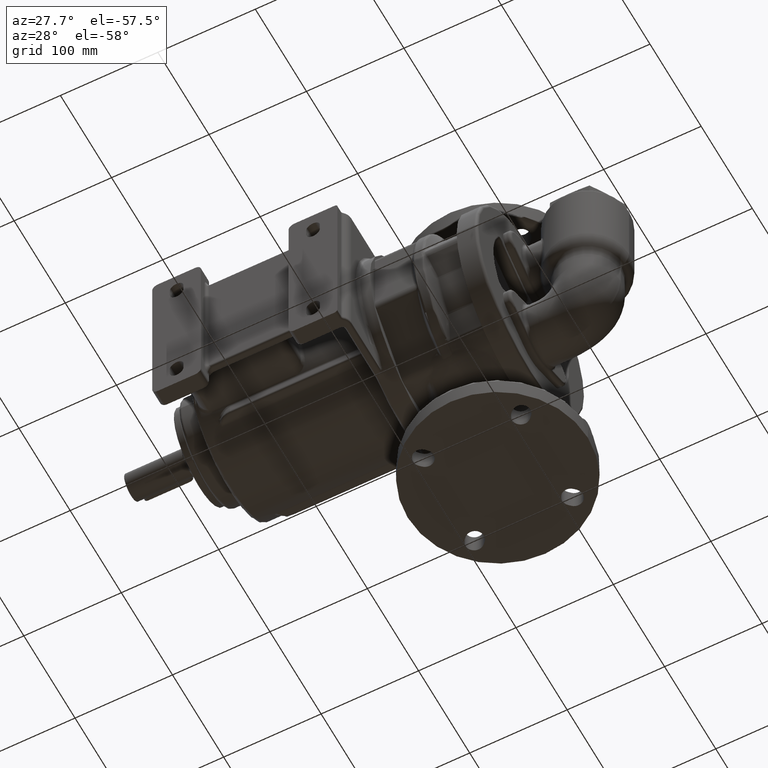
[diagram: clean part render]
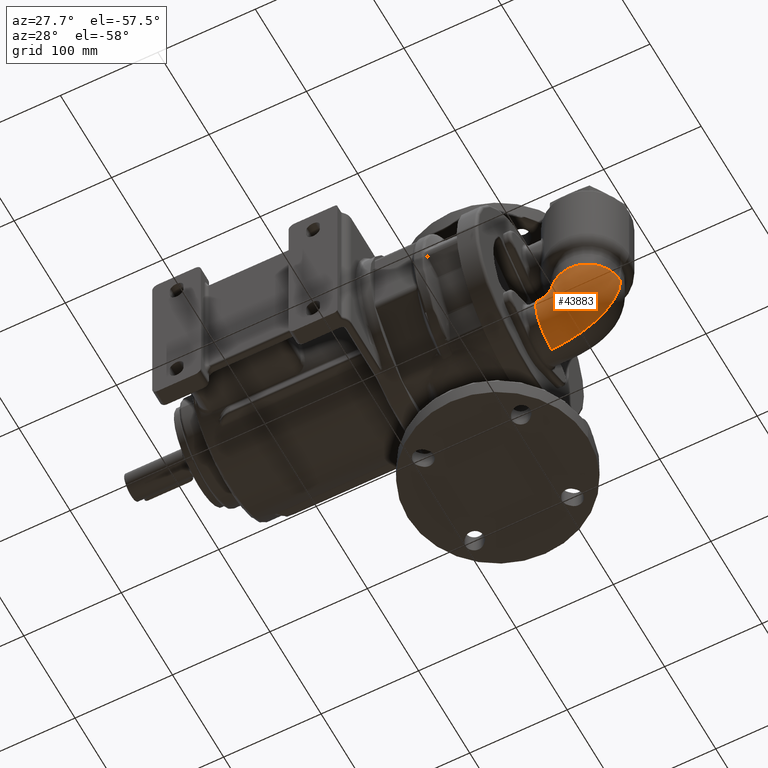
[diagram: same view with one face highlighted and labeled with its STEP entity id]
A machine part, auxiliary view. The second image highlights one B-rep face of the part: STEP entity #43883.
In plain terms, the highlighted face is a freeform B-spline surface patch.
Its self-contained STEP definition (entity closure, byte-faithful):
#14830=CARTESIAN_POINT('',(1.785E2,1.062162584111E-14,-1.65E1));
#14831=DIRECTION('',(0.E0,0.E0,-1.E0));
#14832=DIRECTION('',(1.E0,0.E0,0.E0));
#14833=AXIS2_PLACEMENT_3D('',#14830,#14831,#14832);
#14835=CARTESIAN_POINT('',(2.125E2,0.E0,-1.65E1));
#14836=CARTESIAN_POINT('',(2.125E2,0.E0,-1.859439510239E1));
#14837=CARTESIAN_POINT('',(2.122717106373E2,1.379248747968E-14,
-2.278318155853E1));
#14838=CARTESIAN_POINT('',(2.112477063320E2,1.170968048954E-14,
-2.900585377810E1));
#14839=CARTESIAN_POINT('',(2.095519934867E2,1.450074071231E-14,
-3.510808698326E1));
#14840=CARTESIAN_POINT('',(2.072009027432E2,1.605567231153E-14,
-4.103111435456E1));
#14841=CARTESIAN_POINT('',(2.047143807826E2,1.767072253734E-14,
-4.577009708133E1));
#14842=CARTESIAN_POINT('',(2.024231633489E2,1.890549857897E-14,
-4.941577585329E1));
#14843=CARTESIAN_POINT('',(2.005580694320E2,1.983933572868E-14,
-5.207078570492E1));
#14844=CARTESIAN_POINT('',(1.985506137640E2,2.076783218718E-14,
-5.464005080657E1));
#14845=CARTESIAN_POINT('',(1.964058009467E2,2.169127794603E-14,
-5.711748852317E1));
#14846=CARTESIAN_POINT('',(1.941286355816E2,2.260641057715E-14,
-5.949701621960E1));
#14847=CARTESIAN_POINT('',(1.917247595838E2,2.351105635415E-14,
-6.177302272344E1));
#14848=CARTESIAN_POINT('',(1.891998148686E2,2.440279193360E-14,
-6.393989686227E1));
#14849=CARTESIAN_POINT('',(1.865600263304E2,2.527940740569E-14,
-6.599255296606E1));
#14850=CARTESIAN_POINT('',(1.838116188635E2,2.613875189100E-14,
-6.792590536477E1));
#14851=CARTESIAN_POINT('',(1.809613403914E2,2.697854731622E-14,
-6.973544286826E1));
#14852=CARTESIAN_POINT('',(1.780159388372E2,2.779759261094E-14,
-7.141665428638E1));
#14853=CARTESIAN_POINT('',(1.739715139496E2,2.885524621258E-14,
-7.348197704344E1));
#14854=CARTESIAN_POINT('',(1.687142049871E2,3.013771390598E-14,
-7.572334895159E1));
#14855=CARTESIAN_POINT('',(1.621433464971E2,3.145502848630E-14,
-7.784264201618E1));
#14856=CARTESIAN_POINT('',(1.553736815351E2,3.303632891116E-14,
-7.937117190486E1));
#14857=CARTESIAN_POINT('',(1.484704045415E2,3.302203681062E-14,
-8.029421803922E1));
#14858=CARTESIAN_POINT('',(1.438234695667E2,3.653829090782E-14,-8.05E1));
#14859=CARTESIAN_POINT('',(1.415E2,3.684062010490E-14,-8.05E1));
#14861=CARTESIAN_POINT('',(1.445E2,1.572543586257E-14,-1.65E1));
#14862=CARTESIAN_POINT('',(1.445E2,1.579082284252E-14,-1.659817477042E1));
#14863=CARTESIAN_POINT('',(1.444903307092E2,1.592304789911E-14,
-1.679452290068E1));
#14864=CARTESIAN_POINT('',(1.444470975901E2,1.612493449152E-14,
-1.708621396958E1));
#14865=CARTESIAN_POINT('',(1.443754139775E2,1.632956580903E-14,
-1.737224701727E1));
#14866=CARTESIAN_POINT('',(1.442761052277E2,1.653608391797E-14,
-1.764990048641E1));
#14867=CARTESIAN_POINT('',(1.441710147854E2,1.670903972591E-14,
-1.787202743078E1));
#14868=CARTESIAN_POINT('',(1.440742126968E2,1.684748006903E-14,
-1.804292474510E1));
#14869=CARTESIAN_POINT('',(1.439954138018E2,1.695123850297E-14,
-1.816738219193E1));
#14870=CARTESIAN_POINT('',(1.439105851173E2,1.705481538819E-14,
-1.828781068155E1));
#14871=CARTESIAN_POINT('',(1.438199521103E2,1.715810293965E-14,
-1.840393547295E1));
#14872=CARTESIAN_POINT('',(1.437237402478E2,1.726099260893E-14,
-1.851548182513E1));
#14873=CARTESIAN_POINT('',(1.436221749971E2,1.736337869684E-14,
-1.862217499710E1));
#14874=CARTESIAN_POINT('',(1.435154818251E2,1.746514487057E-14,
-1.872374024784E1));
#14875=CARTESIAN_POINT('',(1.434039354729E2,1.756622037580E-14,
-1.881995211027E1));
#14876=CARTESIAN_POINT('',(1.432878106815E2,1.766638635057E-14,
-1.891058511730E1));
#14877=CARTESIAN_POINT('',(1.431673821919E2,1.776597667805E-14,
-1.899541380184E1));
#14878=CARTESIAN_POINT('',(1.430429247451E2,1.786326236857E-14,
-1.907421269679E1));
#14879=CARTESIAN_POINT('',(1.428720274308E2,1.799787653947E-14,
-1.917101478541E1));
#14880=CARTESIAN_POINT('',(1.426499004864E2,1.811845025298E-14,
-1.927610522768E1));
#14881=CARTESIAN_POINT('',(1.423722470173E2,1.846245893160E-14,
-1.937541397751E1));
#14882=CARTESIAN_POINT('',(1.420862139696E2,1.805223297822E-14,
-1.944709759013E1));
#14883=CARTESIAN_POINT('',(1.417945229007E2,2.042246757062E-14,
-1.949033070922E1));
#14884=CARTESIAN_POINT('',(1.415981747704E2,1.506367692289E-14,-1.95E1));
#14885=CARTESIAN_POINT('',(1.415E2,1.511732218921E-14,-1.95E1));
#15051=CARTESIAN_POINT('',(1.415E2,2.521112981386E-14,-5.E1));
#15052=DIRECTION('',(-1.E0,0.E0,0.E0));
#15053=DIRECTION('',(0.E0,0.E0,-1.E0));
#15054=AXIS2_PLACEMENT_3D('',#15051,#15052,#15053);
#17860=VERTEX_POINT('',#14835);
#17861=VERTEX_POINT('',#14859);
#17862=VERTEX_POINT('',#14861);
#17863=VERTEX_POINT('',#14885);
#42948=CARTESIAN_POINT('',(2.124794541118E2,1.055011355439E0,
-1.580822281169E1));
#42949=CARTESIAN_POINT('',(2.125250414612E2,-4.098225938980E-1,
-1.581134273326E1));
#42950=CARTESIAN_POINT('',(2.124381060246E2,-2.991463615391E0,
-1.581767086845E1));
#42951=CARTESIAN_POINT('',(2.118962863089E2,-6.643799203922E0,
-1.582899263769E1));
#42952=CARTESIAN_POINT('',(2.110851883078E2,-9.882703800612E0,
-1.584109752594E1));
#42953=CARTESIAN_POINT('',(2.099612346517E2,-1.302564040540E1,
-1.585510647719E1));
#42954=CARTESIAN_POINT('',(2.085352249531E2,-1.604305125399E1,
-1.587103915487E1));
#42955=CARTESIAN_POINT('',(2.068206666637E2,-1.890646352057E1,
-1.588884855893E1));
#42956=CARTESIAN_POINT('',(2.048336950481E2,-2.158872708306E1,
-1.590845987268E1));
#42957=CARTESIAN_POINT('',(2.025929938275E2,-2.406423431611E1,
-1.592973980581E1));
#42958=CARTESIAN_POINT('',(2.001196737421E2,-2.630917584699E1,
-1.595253887405E1));
#42959=CARTESIAN_POINT('',(1.974371473429E2,-2.830177291860E1,
-1.597666983165E1));
#42960=CARTESIAN_POINT('',(1.945709438942E2,-3.002253535025E1,
-1.600194513649E1));
#42961=CARTESIAN_POINT('',(1.915485164939E2,-3.145448828030E1,
-1.602815941686E1));
#42962=CARTESIAN_POINT('',(1.883989827095E2,-3.258340255580E1,
-1.605511556657E1));
#42963=CARTESIAN_POINT('',(1.851528559095E2,-3.339798490278E1,
-1.608260849044E1));
#42964=CARTESIAN_POINT('',(1.818417192800E2,-3.389004609082E1,
-1.611043776885E1));
#42965=CARTESIAN_POINT('',(1.784978923626E2,-3.405462093562E1,
-1.613839430173E1));
#42966=CARTESIAN_POINT('',(1.751540644045E2,-3.389004606153E1,
-1.616626279626E1));
#42967=CARTESIAN_POINT('',(1.718429248416E2,-3.339798484489E1,
-1.619381699783E1));
#42968=CARTESIAN_POINT('',(1.685967937529E2,-3.258340247068E1,
-1.622081889786E1));
#42969=CARTESIAN_POINT('',(1.654472551375E2,-3.145448817E1,-1.624702955131E1));
#42970=CARTESIAN_POINT('',(1.624248233296E2,-3.002253521753E1,
-1.627221218101E1));
#42971=CARTESIAN_POINT('',(1.595586168532E2,-2.830177276688E1,
-1.629616253477E1));
#42972=CARTESIAN_POINT('',(1.568760895545E2,-2.630917568044E1,
-1.631871851919E1));
#42973=CARTESIAN_POINT('',(1.544027710144E2,-2.406423413932E1,
-1.633980398154E1));
#42974=CARTESIAN_POINT('',(1.521620734322E2,-2.158872690235E1,
-1.635943417455E1));
#42975=CARTESIAN_POINT('',(1.501751063305E2,-1.890646333901E1,
-1.637774656202E1));
#42976=CARTESIAN_POINT('',(1.484605513035E2,-1.604305109004E1,
-1.639497032789E1));
#42977=CARTESIAN_POINT('',(1.470345405484E2,-1.302564022332E1,
-1.641140234839E1));
#42978=CARTESIAN_POINT('',(1.459105788842E2,-9.882703770231E0,
-1.642729646088E1));
#42979=CARTESIAN_POINT('',(1.452346477881E2,-7.183616237629E0,
-1.644017176285E1));
#42980=CARTESIAN_POINT('',(1.448543458302E2,-4.991581006980E0,
-1.645000206598E1));
#42981=CARTESIAN_POINT('',(1.446499873322E2,-3.335056495308E0,
-1.645695091342E1));
#42982=CARTESIAN_POINT('',(1.445014800730E2,-1.321846173917E0,
-1.646445118485E1));
#42983=CARTESIAN_POINT('',(1.444880258157E2,1.416934696883E-1,
-1.646836859998E1));
#42984=CARTESIAN_POINT('',(1.445160105208E2,1.047370746618E0,
-1.646961402565E1));
#42985=CARTESIAN_POINT('',(2.125075456211E2,1.051930392969E0,
-1.814035020663E1));
#42986=CARTESIAN_POINT('',(2.125525945483E2,-4.079119789398E-1,
-1.813267503174E1));
#42987=CARTESIAN_POINT('',(2.124658939191E2,-2.986105994478E0,
-1.811724374258E1));
#42988=CARTESIAN_POINT('',(2.119231229356E2,-6.643499829502E0,
-1.808995421285E1));
#42989=CARTESIAN_POINT('',(2.111085075770E2,-9.892260425688E0,
-1.806097781568E1));
#42990=CARTESIAN_POINT('',(2.099776507406E2,-1.304767168265E1,
-1.802760592430E1));
#42991=CARTESIAN_POINT('',(2.085414976053E2,-1.607764458172E1,
-1.798977678933E1));
#42992=CARTESIAN_POINT('',(2.068144191127E2,-1.895159418794E1,
-1.794758352230E1));
#42993=CARTESIAN_POINT('',(2.048139535952E2,-2.164082067795E1,
-1.790118186949E1));
#42994=CARTESIAN_POINT('',(2.025604533965E2,-2.411888577909E1,
-1.785086663260E1));
#42995=CARTESIAN_POINT('',(2.000767485313E2,-2.636184566973E1,
-1.779697134895E1));
#42996=CARTESIAN_POINT('',(1.973877375199E2,-2.834847448021E1,
-1.773992273009E1));
#42997=CARTESIAN_POINT('',(1.945200508595E2,-3.006035363258E1,
-1.768015139926E1));
#42998=CARTESIAN_POINT('',(1.915016659821E2,-3.148195609795E1,
-1.761813578395E1));
#42999=CARTESIAN_POINT('',(1.883616261524E2,-3.260063614384E1,
-1.755433924951E1));
#43000=CARTESIAN_POINT('',(1.851297317831E2,-3.340662425547E1,
-1.748924965839E1));
#43001=CARTESIAN_POINT('',(1.818363311526E2,-3.389297933360E1,
-1.742334782964E1));
#43002=CARTESIAN_POINT('',(1.785120983650E2,-3.405555729793E1,
-1.735713888231E1));
#43003=CARTESIAN_POINT('',(1.751878716107E2,-3.389297946613E1,
-1.729114456880E1));
#43004=CARTESIAN_POINT('',(1.718944879926E2,-3.340662451742E1,
-1.722591313603E1));
#43005=CARTESIAN_POINT('',(1.686626185165E2,-3.260063652901E1,
-1.716201957447E1));
#43006=CARTESIAN_POINT('',(1.655226067737E2,-3.148195659700E1,
-1.710003781855E1));
#43007=CARTESIAN_POINT('',(1.625042476096E2,-3.006035423310E1,
-1.704053230554E1));
#43008=CARTESIAN_POINT('',(1.596365787744E2,-2.834847516670E1,
-1.698398367266E1));
#43009=CARTESIAN_POINT('',(1.569475733871E2,-2.636184642340E1,
-1.693076574432E1));
#43010=CARTESIAN_POINT('',(1.544638601164E2,-2.411888657875E1,
-1.688103991728E1));
#43011=CARTESIAN_POINT('',(1.522103395207E2,-2.164082149673E1,
-1.683474346739E1));
#43012=CARTESIAN_POINT('',(1.502098485987E2,-1.895159500537E1,
-1.679151638256E1));
#43013=CARTESIAN_POINT('',(1.484827520851E2,-1.607764533884E1,
-1.675077737071E1));
#43014=CARTESIAN_POINT('',(1.470466055168E2,-1.304767244940E1,
-1.671178379805E1));
#43015=CARTESIAN_POINT('',(1.459157968052E2,-9.892260776271E0,
-1.667390167112E1));
#43016=CARTESIAN_POINT('',(1.452370407501E2,-7.184961107294E0,
-1.664305789075E1));
#43017=CARTESIAN_POINT('',(1.448558263910E2,-4.988992094770E0,
-1.661941409388E1));
#43018=CARTESIAN_POINT('',(1.446512619488E2,-3.331158351517E0,
-1.660265356631E1));
#43019=CARTESIAN_POINT('',(1.445027898866E2,-1.318715973424E0,
-1.658450495984E1));
#43020=CARTESIAN_POINT('',(1.444892706390E2,1.417154041420E-1,
-1.657496347862E1));
#43021=CARTESIAN_POINT('',(1.445169089990E2,1.044318732290E0,
-1.657188674241E1));
#43022=CARTESIAN_POINT('',(2.122916098423E2,1.046822478319E0,
-2.257285415194E1));
#43023=CARTESIAN_POINT('',(2.123383920572E2,-4.046808756763E-1,
-2.255000518970E1));
#43024=CARTESIAN_POINT('',(2.122566985827E2,-2.977530434204E0,
-2.250142850885E1));
#43025=CARTESIAN_POINT('',(2.117191349187E2,-6.644536705461E0,
-2.240929462158E1));
#43026=CARTESIAN_POINT('',(2.109050333473E2,-9.910945992539E0,
-2.230749833089E1));
#43027=CARTESIAN_POINT('',(2.097693457439E2,-1.308820927869E1,
-2.218702831920E1));
#43028=CARTESIAN_POINT('',(2.083232949090E2,-1.613974527230E1,
-2.204796027341E1));
#43029=CARTESIAN_POINT('',(2.065827156059E2,-1.903124846073E1,
-2.189100801999E1));
#43030=CARTESIAN_POINT('',(2.045674834923E2,-2.173132318316E1,
-2.171718428214E1));
#43031=CARTESIAN_POINT('',(2.023007248860E2,-2.421213597924E1,
-2.152800853700E1));
#43032=CARTESIAN_POINT('',(1.998081072445E2,-2.644960295923E1,
-2.132513687163E1));
#43033=CARTESIAN_POINT('',(1.971169738239E2,-2.842359218551E1,
-2.111049709414E1));
#43034=CARTESIAN_POINT('',(1.942557422548E2,-3.011770624195E1,
-2.088596677045E1));
#43035=CARTESIAN_POINT('',(1.912532141513E2,-3.151910638774E1,
-2.065348903979E1));
#43036=CARTESIAN_POINT('',(1.881382495254E2,-3.261806715640E1,
-2.041485977335E1));
#43037=CARTESIAN_POINT('',(1.849394041695E2,-3.340761775066E1,
-2.017185357884E1));
#43038=CARTESIAN_POINT('',(1.816849113204E2,-3.388310449843E1,
-1.992613745412E1));
#43039=CARTESIAN_POINT('',(1.784026545767E2,-3.404188602897E1,
-1.967939343916E1));
#43040=CARTESIAN_POINT('',(1.751203476508E2,-3.388310441131E1,
-1.943332586892E1));
#43041=CARTESIAN_POINT('',(1.718657131341E2,-3.340761757846E1,
-1.918972707012E1));
#43042=CARTESIAN_POINT('',(1.686666599217E2,-3.261806690322E1,
-1.895051113486E1));
#43043=CARTESIAN_POINT('',(1.655514595192E2,-3.151910605969E1,
-1.871765430947E1));
#43044=CARTESIAN_POINT('',(1.625487131737E2,-3.011770584718E1,
-1.849318551671E1));
#43045=CARTESIAN_POINT('',(1.596873259229E2,-2.842359173435E1,
-1.827895798987E1));
#43046=CARTESIAN_POINT('',(1.569961345893E2,-2.644960246344E1,
-1.807656746755E1));
#43047=CARTESIAN_POINT('',(1.545035717523E2,-2.421213545496E1,
-1.788699737955E1));
#43048=CARTESIAN_POINT('',(1.522369639524E2,-2.173132263986E1,
-1.771055005214E1));
#43049=CARTESIAN_POINT('',(1.502219219105E2,-1.903124794238E1,
-1.754657820913E1));
#43050=CARTESIAN_POINT('',(1.484814697075E2,-1.613974470378E1,
-1.739369168453E1));
#43051=CARTESIAN_POINT('',(1.470353465206E2,-1.308820903901E1,
-1.724991963967E1));
#43052=CARTESIAN_POINT('',(1.458992336789E2,-9.910944775561E0,
-1.711356080421E1));
#43053=CARTESIAN_POINT('',(1.452200882880E2,-7.188940382392E0,
-1.700567161358E1));
#43054=CARTESIAN_POINT('',(1.448404150964E2,-4.985677002644E0,
-1.692484872431E1));
#43055=CARTESIAN_POINT('',(1.446376771317E2,-3.325186475924E0,
-1.686849030141E1));
#43056=CARTESIAN_POINT('',(1.444918822885E2,-1.313593118751E0,
-1.680861061129E1));
#43057=CARTESIAN_POINT('',(1.444804100265E2,1.417904727089E-1,
-1.677835655895E1));
#43058=CARTESIAN_POINT('',(1.445091655032E2,1.039259094131E0,
-1.676944590356E1));
#43059=CARTESIAN_POINT('',(2.112261382488E2,1.041027827229E0,
-2.903033238001E1));
#43060=CARTESIAN_POINT('',(2.112780901004E2,-4.008914369279E-1,
-2.899919076785E1));
#43061=CARTESIAN_POINT('',(2.112086746613E2,-2.968404580843E0,
-2.892358663529E1));
#43062=CARTESIAN_POINT('',(2.106894269120E2,-6.648601869294E0,
-2.875934529139E1));
#43063=CARTESIAN_POINT('',(2.098896273502E2,-9.937331036671E0,
-2.856552947841E1));
#43064=CARTESIAN_POINT('',(2.087647684786E2,-1.314119654467E1,
-2.832648615427E1));
#43065=CARTESIAN_POINT('',(2.073263682456E2,-1.621790358382E1,
-2.804319419616E1));
#43066=CARTESIAN_POINT('',(2.055918486724E2,-1.912848289783E1,
-2.771810897791E1));
#43067=CARTESIAN_POINT('',(2.035835761352E2,-2.183824406333E1,
-2.735447351330E1));
#43068=CARTESIAN_POINT('',(2.013276350877E2,-2.431777400793E1,
-2.695655137766E1));
#43069=CARTESIAN_POINT('',(1.988526636307E2,-2.654305432470E1,
-2.652887212942E1));
#43070=CARTESIAN_POINT('',(1.961885235101E2,-2.849562365292E1,
-2.607633739070E1));
#43071=CARTESIAN_POINT('',(1.933653711661E2,-3.016195140979E1,
-2.560358335414E1));
#43072=CARTESIAN_POINT('',(1.904126654991E2,-3.153291321372E1,
-2.511509787694E1));
#43073=CARTESIAN_POINT('',(1.873587717980E2,-3.260277184277E1,
-2.461483543946E1));
#43074=CARTESIAN_POINT('',(1.842305723547E2,-3.336835148945E1,
-2.410642221362E1));
#43075=CARTESIAN_POINT('',(1.810536525691E2,-3.382808831117E1,
-2.359305679692E1));
#43076=CARTESIAN_POINT('',(1.778525158581E2,-3.398136598138E1,
-2.307777768742E1));
#43077=CARTESIAN_POINT('',(1.746511450020E2,-3.382802813864E1,
-2.256356890019E1));
#43078=CARTESIAN_POINT('',(1.714735739982E2,-3.336823255469E1,
-2.205356867675E1));
#43079=CARTESIAN_POINT('',(1.683444521801E2,-3.260259696636E1,
-2.155122224146E1));
#43080=CARTESIAN_POINT('',(1.652895856918E2,-3.153268662655E1,
-2.106027022302E1));
#43081=CARTESIAN_POINT('',(1.623361190187E2,-3.016167875298E1,
-2.058478454067E1));
#43082=CARTESIAN_POINT('',(1.595126771702E2,-2.849531197818E1,
-2.012882021558E1));
#43083=CARTESIAN_POINT('',(1.568489221421E2,-2.654271209288E1,
-1.969625620269E1));
#43084=CARTESIAN_POINT('',(1.543750965806E2,-2.431741109447E1,
-1.929016151046E1));
#43085=CARTESIAN_POINT('',(1.521209659002E2,-2.183787173796E1,
-1.891258871485E1));
#43086=CARTESIAN_POINT('',(1.501148405977E2,-1.912811390028E1,
-1.856403020035E1));
#43087=CARTESIAN_POINT('',(1.483822166397E2,-1.621755184132E1,
-1.824364964497E1));
#43088=CARTESIAN_POINT('',(1.469446685175E2,-1.314087822621E1,
-1.794946088200E1));
#43089=CARTESIAN_POINT('',(1.458187504822E2,-9.937060618377E0,
-1.767968544110E1));
#43090=CARTESIAN_POINT('',(1.451492661843E2,-7.196515785425E0,
-1.747516315694E1));
#43091=CARTESIAN_POINT('',(1.447775181848E2,-4.983614812227E0,
-1.732749599339E1));
#43092=CARTESIAN_POINT('',(1.445807057395E2,-3.319244457395E0,
-1.722737342203E1));
#43093=CARTESIAN_POINT('',(1.444420401569E2,-1.307866566224E0,
-1.712459761546E1));
#43094=CARTESIAN_POINT('',(1.444359873334E2,1.419469601834E-1,
-1.707669472157E1));
#43095=CARTESIAN_POINT('',(1.444686467885E2,1.033481757653E0,
-1.706555244492E1));
#43096=CARTESIAN_POINT('',(2.095272543825E2,1.036538124007E0,
-3.513184270465E1));
#43097=CARTESIAN_POINT('',(2.095830710149E2,-3.979264275472E-1,
-3.510364227057E1));
#43098=CARTESIAN_POINT('',(2.095245603438E2,-2.961484955679E0,
-3.501908014012E1));
#43099=CARTESIAN_POINT('',(2.090264709951E2,-6.652152181644E0,
-3.480417812517E1));
#43100=CARTESIAN_POINT('',(2.082482093875E2,-9.958036964537E0,
-3.453446194616E1));
#43101=CARTESIAN_POINT('',(2.071464333113E2,-1.318169463698E1,
-3.418998923915E1));
#43102=CARTESIAN_POINT('',(2.057327625001E2,-1.627615763205E1,
-3.377312874015E1));
#43103=CARTESIAN_POINT('',(2.040255864410E2,-1.919870226787E1,
-3.328861004861E1));
#43104=CARTESIAN_POINT('',(2.020487944922E2,-2.191206107007E1,
-3.274251767312E1));
#43105=CARTESIAN_POINT('',(1.998302961666E2,-2.438570058161E1,
-3.214242144624E1));
#43106=CARTESIAN_POINT('',(1.974005015876E2,-2.659587077492E1,
-3.149627123266E1));
#43107=CARTESIAN_POINT('',(1.947907112113E2,-2.852572328546E1,
-3.081236517771E1));
#43108=CARTESIAN_POINT('',(1.920319272099E2,-3.016433421957E1,
-3.009843658652E1));
#43109=CARTESIAN_POINT('',(1.891536892811E2,-3.150587852478E1,
-2.936169373907E1));
#43110=CARTESIAN_POINT('',(1.861836093181E2,-3.254812377591E1,
-2.860830945206E1));
#43111=CARTESIAN_POINT('',(1.831469967414E2,-3.329120678798E1,
-2.784366375604E1));
#43112=CARTESIAN_POINT('',(1.800671793278E2,-3.373625099538E1,
-2.707228264736E1));
#43113=CARTESIAN_POINT('',(1.769659116427E2,-3.388439727809E1,
-2.629824845374E1));
#43114=CARTESIAN_POINT('',(1.738642038182E2,-3.373609782510E1,
-2.552545409166E1));
#43115=CARTESIAN_POINT('',(1.707831774968E2,-3.329090403736E1,
-2.475799058546E1));
#43116=CARTESIAN_POINT('',(1.677449049357E2,-3.254767862478E1,
-2.400046271329E1));
#43117=CARTESIAN_POINT('',(1.647731945193E2,-3.150530174297E1,
-2.325809272455E1));
#43118=CARTESIAN_POINT('',(1.618939265199E2,-3.016364016670E1,
-2.253683322369E1));
#43119=CARTESIAN_POINT('',(1.591352782976E2,-2.852492991149E1,
-2.184298617478E1));
#43120=CARTESIAN_POINT('',(1.565272317345E2,-2.659499961822E1,
-2.118297770676E1));
#43121=CARTESIAN_POINT('',(1.541009766832E2,-2.438477677620E1,
-2.056252803769E1));
#43122=CARTESIAN_POINT('',(1.518876038995E2,-2.191111331843E1,
-1.998627563428E1));
#43123=CARTESIAN_POINT('',(1.499168101137E2,-1.919776294267E1,
-1.945698452724E1));
#43124=CARTESIAN_POINT('',(1.482152240586E2,-1.627526239625E1,
-1.897567352447E1));
#43125=CARTESIAN_POINT('',(1.468050091849E2,-1.318088386174E1,
-1.854171039742E1));
#43126=CARTESIAN_POINT('',(1.457026723892E2,-9.957350437579E0,
-1.815438521836E1));
#43127=CARTESIAN_POINT('',(1.450491767807E2,-7.202599119374E0,
-1.787133938797E1));
#43128=CARTESIAN_POINT('',(1.446877555409E2,-4.982183826657E0,
-1.767385065802E1));
#43129=CARTESIAN_POINT('',(1.444975310984E2,-3.314729619356E0,
-1.754361450300E1));
#43130=CARTESIAN_POINT('',(1.443657740571E2,-1.303427437378E0,
-1.741471237708E1));
#43131=CARTESIAN_POINT('',(1.443645672181E2,1.420825252392E-1,
-1.736018740549E1));
#43132=CARTESIAN_POINT('',(1.444011281022E2,1.028975780949E0,
-1.735196271263E1));
#43133=CARTESIAN_POINT('',(2.071754360673E2,1.032578699194E0,
-4.104837450290E1));
#43134=CARTESIAN_POINT('',(2.072314988376E2,-3.954185196280E-1,
-4.103132878191E1));
#43135=CARTESIAN_POINT('',(2.071791182712E2,-2.954886922251E0,
-4.095082317870E1));
#43136=CARTESIAN_POINT('',(2.067012215373E2,-6.652149190553E0,
-4.070015435919E1));
#43137=CARTESIAN_POINT('',(2.059488571382E2,-9.969601631852E0,
-4.036522476423E1));
#43138=CARTESIAN_POINT('',(2.048799573814E2,-1.320624369836E1,
-3.992346173165E1));
#43139=CARTESIAN_POINT('',(2.035060056975E2,-1.631128248987E1,
-3.937900277186E1));
#43140=CARTESIAN_POINT('',(2.018457766235E2,-1.923897872905E1,
-3.873926657166E1));
#43141=CARTESIAN_POINT('',(1.999238192070E2,-2.195006950855E1,
-3.801365705287E1));
#43142=CARTESIAN_POINT('',(1.977688681756E2,-2.441327141562E1,
-3.721349216383E1));
#43143=CARTESIAN_POINT('',(1.954120497461E2,-2.660526409695E1,
-3.635057603589E1));
#43144=CARTESIAN_POINT('',(1.928851370595E2,-2.851076134189E1,
-3.543694504631E1));
#43145=CARTESIAN_POINT('',(1.902191569591E2,-3.012123030535E1,
-3.448371148410E1));
#43146=CARTESIAN_POINT('',(1.874431567440E2,-3.143380387098E1,
-3.350096484618E1));
#43147=CARTESIAN_POINT('',(1.845836715581E2,-3.244935774380E1,
-3.249717276983E1));
#43148=CARTESIAN_POINT('',(1.816643972993E2,-3.317094610606E1,
-3.147942821170E1));
#43149=CARTESIAN_POINT('',(1.787065915989E2,-3.360204994265E1,
-3.045346511697E1));
#43150=CARTESIAN_POINT('',(1.757296374120E2,-3.374534786735E1,
-2.942420867107E1));
#43151=CARTESIAN_POINT('',(1.727520491902E2,-3.360182404794E1,
-2.839621584922E1));
#43152=CARTESIAN_POINT('',(1.697925268033E2,-3.317049961106E1,
-2.737426790940E1));
#43153=CARTESIAN_POINT('',(1.668709814614E2,-3.244870123730E1,
-2.636388151586E1));
#43154=CARTESIAN_POINT('',(1.640094699457E2,-3.143295323623E1,
-2.537157885885E1));
#43155=CARTESIAN_POINT('',(1.612326373612E2,-3.012020671989E1,
-2.440510111983E1));
#43156=CARTESIAN_POINT('',(1.585679591046E2,-2.850959127814E1,
-2.347306214710E1));
#43157=CARTESIAN_POINT('',(1.560452177368E2,-2.660397931990E1,
-2.258466594484E1));
#43158=CARTESIAN_POINT('',(1.536957521671E2,-2.441190899153E1,
-2.174874573904E1));
#43159=CARTESIAN_POINT('',(1.515509868756E2,-2.194867177249E1,
-2.097319468869E1));
#43160=CARTESIAN_POINT('',(1.496408617566E2,-1.923759340603E1,
-2.026394594220E1));
#43161=CARTESIAN_POINT('',(1.479919822375E2,-1.630996224273E1,
-1.962490077629E1));
#43162=CARTESIAN_POINT('',(1.466260261659E2,-1.320504781522E1,
-1.905785929351E1));
#43163=CARTESIAN_POINT('',(1.455586428652E2,-9.968589728237E0,
-1.856408060684E1));
#43164=CARTESIAN_POINT('',(1.449256423596E2,-7.204268882696E0,
-1.821584192531E1));
#43165=CARTESIAN_POINT('',(1.445753164874E2,-4.979005949144E0,
-1.798132950894E1));
#43166=CARTESIAN_POINT('',(1.443909779425E2,-3.309844415704E0,
-1.783134021243E1));
#43167=CARTESIAN_POINT('',(1.442639982688E2,-1.299414182242E0,
-1.768912344388E1));
#43168=CARTESIAN_POINT('',(1.442652942430E2,1.421374654542E-1,
-1.763644010552E1));
#43169=CARTESIAN_POINT('',(1.443043851059E2,1.025007031282E0,
-1.763507142796E1));
#43170=CARTESIAN_POINT('',(2.046911249640E2,1.029243870313E0,
-4.577893899157E1));
#43171=CARTESIAN_POINT('',(2.047432568068E2,-3.935140421903E-1,
-4.577543826878E1));
#43172=CARTESIAN_POINT('',(2.046903062699E2,-2.948348589848E0,
-4.570523524051E1));
#43173=CARTESIAN_POINT('',(2.042264124143E2,-6.646521184350E0,
-4.543325027300E1));
#43174=CARTESIAN_POINT('',(2.034976461413E2,-9.967941014357E0,
-4.505063869113E1));
#43175=CARTESIAN_POINT('',(2.024628305719E2,-1.320894376193E1,
-4.453357323253E1));
#43176=CARTESIAN_POINT('',(2.011331130759E2,-1.631626186588E1,
-4.388785750599E1));
#43177=CARTESIAN_POINT('',(1.995271100723E2,-1.924225384536E1,
-4.312334014094E1));
#43178=CARTESIAN_POINT('',(1.976692366180E2,-2.194646212195E1,
-4.225240555776E1));
#43179=CARTESIAN_POINT('',(1.955881278394E2,-2.439725949633E1,
-4.128967511810E1));
#43180=CARTESIAN_POINT('',(1.933146801951E2,-2.657178153144E1,
-4.025034062801E1));
#43181=CARTESIAN_POINT('',(1.908802983292E2,-2.845595797021E1,
-3.914967617835E1));
#43182=CARTESIAN_POINT('',(1.883153761924E2,-3.004302162921E1,
-3.800170918351E1));
#43183=CARTESIAN_POINT('',(1.856480783860E2,-3.133223802266E1,
-3.681896960535E1));
#43184=CARTESIAN_POINT('',(1.829037558304E2,-3.232669748640E1,
-3.561184436762E1));
#43185=CARTESIAN_POINT('',(1.801046793031E2,-3.303151699856E1,
-3.438880532953E1));
#43186=CARTESIAN_POINT('',(1.772704683404E2,-3.345183726395E1,
-3.315651181660E1));
#43187=CARTESIAN_POINT('',(1.744187534599E2,-3.359141623989E1,
-3.192046978848E1));
#43188=CARTESIAN_POINT('',(1.715662640128E2,-3.345161071202E1,
-3.068564559397E1));
#43189=CARTESIAN_POINT('',(1.687299828422E2,-3.303106920452E1,
-2.945723884615E1));
#43190=CARTESIAN_POINT('',(1.659282626600E2,-3.232603906986E1,
-2.824137066977E1));
#43191=CARTESIAN_POINT('',(1.631818155465E2,-3.133138491307E1,
-2.704552020127E1));
#43192=CARTESIAN_POINT('',(1.605142099721E2,-3.004199506572E1,
-2.587883348329E1));
#43193=CARTESIAN_POINT('',(1.579520823068E2,-2.845478450229E1,
-2.475184950589E1));
#43194=CARTESIAN_POINT('',(1.555246023540E2,-2.657049301637E1,
-2.367617727743E1));
#43195=CARTESIAN_POINT('',(1.532625906953E2,-2.439589310869E1,
-2.266347388436E1));
#43196=CARTESIAN_POINT('',(1.511969753273E2,-2.194506031821E1,
-2.172470427379E1));
#43197=CARTESIAN_POINT('',(1.493570307792E2,-1.924086449596E1,
-2.086895418748E1));
#43198=CARTESIAN_POINT('',(1.477684813986E2,-1.631493776236E1,
-2.010313120965E1));
#43199=CARTESIAN_POINT('',(1.464518159692E2,-1.320774445638E1,
-1.943171181205E1));
#43200=CARTESIAN_POINT('',(1.454213819152E2,-9.966925954395E0,
-1.885813699915E1));
#43201=CARTESIAN_POINT('',(1.448079011789E2,-7.199300437186E0,
-1.846522877096E1));
#43202=CARTESIAN_POINT('',(1.444663993688E2,-4.972963304919E0,
-1.820867477578E1));
#43203=CARTESIAN_POINT('',(1.442855412952E2,-3.304129539183E0,
-1.804915367419E1));
#43204=CARTESIAN_POINT('',(1.441596281109E2,-1.295870179457E0,
-1.790414633363E1));
#43205=CARTESIAN_POINT('',(1.441599941673E2,1.420612188512E-1,
-1.785815972381E1));
#43206=CARTESIAN_POINT('',(1.441991855341E2,1.021701548097E0,
-1.786466035011E1));
#43207=CARTESIAN_POINT('',(2.024034427609E2,1.026314246298E0,
-4.941715168893E1));
#43208=CARTESIAN_POINT('',(2.024498367887E2,-3.920029699861E-1,
-4.942549477463E1));
#43209=CARTESIAN_POINT('',(2.023928723750E2,-2.941835349056E0,
-4.936536523941E1));
#43210=CARTESIAN_POINT('',(2.019382438886E2,-6.637311672069E0,
-4.907912475639E1));
#43211=CARTESIAN_POINT('',(2.012292732587E2,-9.958009503250E0,
-4.866107781222E1));
#43212=CARTESIAN_POINT('',(2.002253422756E2,-1.319825980381E1,
-4.808669281593E1));
#43213=CARTESIAN_POINT('',(1.989371953764E2,-1.630324747568E1,
-4.736314600558E1));
#43214=CARTESIAN_POINT('',(1.973830527446E2,-1.922417297542E1,
-4.650224804227E1));
#43215=CARTESIAN_POINT('',(1.955868472539E2,-2.191989417029E1,
-4.551878463572E1));
#43216=CARTESIAN_POINT('',(1.935767033775E2,-2.435866119310E1,
-4.443001359381E1));
#43217=CARTESIAN_POINT('',(1.913828837706E2,-2.651801128153E1,
-4.325382948976E1));
#43218=CARTESIAN_POINT('',(1.890360802528E2,-2.838476951679E1,
-4.200807142004E1));
#43219=CARTESIAN_POINT('',(1.865658206907E2,-2.995341697454E1,
-4.070907579487E1));
#43220=CARTESIAN_POINT('',(1.839992971290E2,-3.122469735440E1,
-3.937129055659E1));
#43221=CARTESIAN_POINT('',(1.813607443078E2,-3.220322062089E1,
-3.800660680389E1));
#43222=CARTESIAN_POINT('',(1.786712304547E2,-3.289550976826E1,
-3.662456040589E1));
#43223=CARTESIAN_POINT('',(1.759490891642E2,-3.330783241789E1,
-3.523251188960E1));
#43224=CARTESIAN_POINT('',(1.732106429102E2,-3.344467738063E1,
-3.383638505609E1));
#43225=CARTESIAN_POINT('',(1.704713218818E2,-3.330765314890E1,
-3.244142202852E1));
#43226=CARTESIAN_POINT('',(1.677468651913E2,-3.289515543191E1,
-3.105309883584E1));
#43227=CARTESIAN_POINT('',(1.650544754292E2,-3.220269962040E1,
-2.967795613609E1));
#43228=CARTESIAN_POINT('',(1.624138176408E2,-3.122402229465E1,
-2.832417652192E1));
#43229=CARTESIAN_POINT('',(1.598475415128E2,-2.995260466187E1,
-2.700197190006E1));
#43230=CARTESIAN_POINT('',(1.573814483245E2,-2.838384095974E1,
-2.572338585381E1));
#43231=CARTESIAN_POINT('',(1.550439551310E2,-2.651699168814E1,
-2.450194283871E1));
#43232=CARTESIAN_POINT('',(1.528651097177E2,-2.435757998086E1,
-2.335160241972E1));
#43233=CARTESIAN_POINT('',(1.508750230411E2,-2.191878492915E1,
-2.228588269175E1));
#43234=CARTESIAN_POINT('',(1.491019811121E2,-1.922307360569E1,
-2.131655539446E1));
#43235=CARTESIAN_POINT('',(1.475705613017E2,-1.630219967343E1,
-2.045314325345E1));
#43236=CARTESIAN_POINT('',(1.462999109920E2,-1.319731098150E1,
-1.970250261603E1));
#43237=CARTESIAN_POINT('',(1.453030503332E2,-9.957205621687E0,
-1.907001764451E1));
#43238=CARTESIAN_POINT('',(1.447062670564E2,-7.190137596923E0,
-1.864608768437E1));
#43239=CARTESIAN_POINT('',(1.443713520801E2,-4.965096110019E0,
-1.837589206051E1));
#43240=CARTESIAN_POINT('',(1.441922823191E2,-3.297882824820E0,
-1.821173513725E1));
#43241=CARTESIAN_POINT('',(1.440652889084E2,-1.292628017115E0,
-1.806787045264E1));
#43242=CARTESIAN_POINT('',(1.440628847071E2,1.418987837773E-1,
-1.802906054992E1));
#43243=CARTESIAN_POINT('',(1.441007175944E2,1.018827097609E0,
-1.804238215020E1));
#43244=CARTESIAN_POINT('',(2.005418183344E2,1.023942049533E0,
-5.206643212787E1));
#43245=CARTESIAN_POINT('',(2.005827046395E2,-3.908577479646E-1,
-5.208382284749E1));
#43246=CARTESIAN_POINT('',(2.005211021627E2,-2.936188653051E0,
-5.203165158731E1));
#43247=CARTESIAN_POINT('',(2.000726122154E2,-6.627811076488E0,
-5.173561002238E1));
#43248=CARTESIAN_POINT('',(1.993790330573E2,-9.945936686736E0,
-5.129205687986E1));
#43249=CARTESIAN_POINT('',(1.984000988872E2,-1.318344744461E1,
-5.067602434869E1));
#43250=CARTESIAN_POINT('',(1.971461871310E2,-1.628458485883E1,
-4.989572096343E1));
#43251=CARTESIAN_POINT('',(1.956350927188E2,-1.919986207837E1,
-4.896441594135E1));
#43252=CARTESIAN_POINT('',(1.938902105843E2,-2.188775679624E1,
-4.789867830862E1));
#43253=CARTESIAN_POINT('',(1.919390794539E2,-2.431649932194E1,
-4.671771332657E1));
#43254=CARTESIAN_POINT('',(1.898112754885E2,-2.646394126045E1,
-4.544141257622E1));
#43255=CARTESIAN_POINT('',(1.875367591098E2,-2.831753408752E1,
-4.408950348588E1));
#43256=CARTESIAN_POINT('',(1.851442391919E2,-2.987260598532E1,
-4.268002381813E1));
#43257=CARTESIAN_POINT('',(1.826600517979E2,-3.113088828373E1,
-4.122883011918E1));
#43258=CARTESIAN_POINT('',(1.801075133526E2,-3.209799801649E1,
-3.974891896747E1));
#43259=CARTESIAN_POINT('',(1.775067577887E2,-3.278138485911E1,
-3.825060401555E1));
#43260=CARTESIAN_POINT('',(1.748751619714E2,-3.318805679475E1,
-3.674175638066E1));
#43261=CARTESIAN_POINT('',(1.722281065661E2,-3.332298170670E1,
-3.522859823224E1));
#43262=CARTESIAN_POINT('',(1.695801022646E2,-3.318793276453E1,
-3.371656316179E1));
#43263=CARTESIAN_POINT('',(1.669460100121E2,-3.278113970563E1,
-3.221131616466E1));
#43264=CARTESIAN_POINT('',(1.643422083396E2,-3.209763755366E1,
-3.071968966891E1));
#43265=CARTESIAN_POINT('',(1.617875836954E2,-3.113042123246E1,
-2.925036806410E1));
#43266=CARTESIAN_POINT('',(1.593040630517E2,-2.987204397331E1,
-2.781433380900E1));
#43267=CARTESIAN_POINT('',(1.569167389563E2,-2.831689165003E1,
-2.642473433571E1));
#43268=CARTESIAN_POINT('',(1.546533363754E2,-2.646323583753E1,
-2.509651258146E1));
#43269=CARTESIAN_POINT('',(1.525431536583E2,-2.431575126859E1,
-2.384535488927E1));
#43270=CARTESIAN_POINT('',(1.506154926597E2,-2.188698934465E1,
-2.268671390091E1));
#43271=CARTESIAN_POINT('',(1.488976884127E2,-1.919910147879E1,
-2.163442387728E1));
#43272=CARTESIAN_POINT('',(1.474132581007E2,-1.628385985381E1,
-2.070003766369E1));
#43273=CARTESIAN_POINT('',(1.461801704814E2,-1.318279123121E1,
-1.989228001492E1));
#43274=CARTESIAN_POINT('',(1.452103264019E2,-9.945379593418E0,
-1.921806137119E1));
#43275=CARTESIAN_POINT('',(1.446265323811E2,-7.180403176693E0,
-1.877305015172E1));
#43276=CARTESIAN_POINT('',(1.442962975113E2,-4.957482532254E0,
-1.849438824223E1));
#43277=CARTESIAN_POINT('',(1.441180662248E2,-3.292223614692E0,
-1.832803437989E1));
#43278=CARTESIAN_POINT('',(1.439892960909E2,-1.289935347465E0,
-1.818641467473E1));
#43279=CARTESIAN_POINT('',(1.439837895176E2,1.417206603977E-1,
-1.815366067369E1));
#43280=CARTESIAN_POINT('',(1.440198557519E2,1.016509792057E0,
-1.817222390219E1));
#43281=CARTESIAN_POINT('',(1.985385844746E2,1.021350738536E0,
-5.463007459637E1));
#43282=CARTESIAN_POINT('',(1.985728523924E2,-3.896823687525E-1,
-5.465633650421E1));
#43283=CARTESIAN_POINT('',(1.985051325099E2,-2.929659850403E0,
-5.461201822011E1));
#43284=CARTESIAN_POINT('',(1.980621117691E2,-6.615478395688E0,
-5.430658115273E1));
#43285=CARTESIAN_POINT('',(1.973845309754E2,-9.928919933781E0,
-5.383834042207E1));
#43286=CARTESIAN_POINT('',(1.964324199513E2,-1.316146339798E1,
-5.318192718329E1));
#43287=CARTESIAN_POINT('',(1.952157275456E2,-1.625662525765E1,
-5.234656664384E1));
#43288=CARTESIAN_POINT('',(1.937517031667E2,-1.916441191348E1,
-5.134695020550E1));
#43289=CARTESIAN_POINT('',(1.920630397128E2,-2.184305170682E1,
-5.020138506685E1));
#43290=CARTESIAN_POINT('',(1.901765011512E2,-2.426082322918E1,
-4.893096592496E1));
#43291=CARTESIAN_POINT('',(1.881207808777E2,-2.639590013521E1,
-4.755752352201E1));
#43292=CARTESIAN_POINT('',(1.859249243848E2,-2.823630872E1,-4.610261395855E1));
#43293=CARTESIAN_POINT('',(1.836166635953E2,-2.977812816249E1,
-4.458592571512E1));
#43294=CARTESIAN_POINT('',(1.812213596772E2,-3.102394929563E1,
-4.302467997680E1));
#43295=CARTESIAN_POINT('',(1.787613337942E2,-3.198025688660E1,
-4.143294772850E1));
#43296=CARTESIAN_POINT('',(1.762557530608E2,-3.265529367160E1,
-3.982179811654E1));
#43297=CARTESIAN_POINT('',(1.737210418152E2,-3.305669870474E1,
-3.819960038048E1));
#43298=CARTESIAN_POINT('',(1.711716714244E2,-3.318984704783E1,
-3.657286702402E1));
#43299=CARTESIAN_POINT('',(1.686212793868E2,-3.305665146628E1,
-3.494721684688E1));
#43300=CARTESIAN_POINT('',(1.660838938116E2,-3.265520030185E1,
-3.332849485616E1));
#43301=CARTESIAN_POINT('',(1.635750989102E2,-3.198011959984E1,-3.172381011E1));
#43302=CARTESIAN_POINT('',(1.611130025444E2,-3.102377141335E1,
-3.014232685717E1));
#43303=CARTESIAN_POINT('',(1.587187714706E2,-2.977791411317E1,
-2.859576803126E1));
#43304=CARTESIAN_POINT('',(1.564167076278E2,-2.823606403985E1,
-2.709835208331E1));
#43305=CARTESIAN_POINT('',(1.542337211233E2,-2.639563146545E1,
-2.566640710533E1));
#43306=CARTESIAN_POINT('',(1.521982012750E2,-2.426053832622E1,
-2.431732296409E1));
#43307=CARTESIAN_POINT('',(1.503384591333E2,-2.184275940411E1,
-2.306847696395E1));
#43308=CARTESIAN_POINT('',(1.486806887037E2,-1.916412226405E1,
-2.193577857339E1));
#43309=CARTESIAN_POINT('',(1.472471691423E2,-1.625634900213E1,
-2.093284183953E1));
#43310=CARTESIAN_POINT('',(1.460545415256E2,-1.316121394987E1,
-2.007030613851E1));
#43311=CARTESIAN_POINT('',(1.451134835949E2,-9.928705970428E0,
-1.935664578759E1));
#43312=CARTESIAN_POINT('',(1.445431720864E2,-7.167560586011E0,
-1.889242628506E1));
#43313=CARTESIAN_POINT('',(1.442174247069E2,-4.947975279315E0,
-1.860670651387E1));
#43314=CARTESIAN_POINT('',(1.440395978484E2,-3.285464603027E0,
-1.843911960278E1));
#43315=CARTESIAN_POINT('',(1.439081796239E2,-1.286928723E0,-1.830070240786E1));
#43316=CARTESIAN_POINT('',(1.438986093925E2,1.414811086038E-1,
-1.827433821412E1));
#43317=CARTESIAN_POINT('',(1.439321816470E2,1.013988358675E0,
-1.829806486152E1));
#43318=CARTESIAN_POINT('',(1.963986171473E2,1.018518039945E0,
-5.710218023881E1));
#43319=CARTESIAN_POINT('',(1.964253396336E2,-3.884675161752E-1,
-5.713687093837E1));
#43320=CARTESIAN_POINT('',(1.963503104389E2,-2.922188575863E0,
-5.709991056152E1));
#43321=CARTESIAN_POINT('',(1.959123854344E2,-6.600200487140E0,
-5.678513626125E1));
#43322=CARTESIAN_POINT('',(1.952515794777E2,-9.906818478156E0,
-5.629287565721E1));
#43323=CARTESIAN_POINT('',(1.943281879967E2,-1.313216227230E1,
-5.559735180828E1));
#43324=CARTESIAN_POINT('',(1.931516751618E2,-1.621924292019E1,
-5.470877400083E1));
#43325=CARTESIAN_POINT('',(1.917386346209E2,-1.911774012597E1,
-5.364319752352E1));
#43326=CARTESIAN_POINT('',(1.901109075684E2,-2.178576145537E1,
-5.242059658782E1));
#43327=CARTESIAN_POINT('',(1.882943101642E2,-2.419169798743E1,
-5.106387065022E1));
#43328=CARTESIAN_POINT('',(1.863164738593E2,-2.631404785241E1,
-4.959670546649E1));
#43329=CARTESIAN_POINT('',(1.842053611553E2,-2.814135429584E1,
-4.804240339045E1));
#43330=CARTESIAN_POINT('',(1.819875827546E2,-2.967034453434E1,
-4.642223422431E1));
#43331=CARTESIAN_POINT('',(1.796874158870E2,-3.090433383064E1,
-4.475472722166E1));
#43332=CARTESIAN_POINT('',(1.773261159644E2,-3.185052883854E1,
-4.305498975659E1));
#43333=CARTESIAN_POINT('',(1.749218528393E2,-3.251782611704E1,
-4.133482359196E1));
#43334=CARTESIAN_POINT('',(1.724901012196E2,-3.291438220763E1,
-3.960308794263E1));
#43335=CARTESIAN_POINT('',(1.700444511907E2,-3.304590480290E1,
-3.786658606910E1));
#43336=CARTESIAN_POINT('',(1.675977070106E2,-3.291442037691E1,
-3.613112629940E1));
#43337=CARTESIAN_POINT('',(1.651631022045E2,-3.251790156100E1,
-3.440273556668E1));
#43338=CARTESIAN_POINT('',(1.627554498320E2,-3.185063976800E1,
-3.268879363718E1));
#43339=CARTESIAN_POINT('',(1.603920747307E2,-3.090447756185E1,
-3.099892801672E1));
#43340=CARTESIAN_POINT('',(1.580933442846E2,-2.967051748882E1,
-2.934557228325E1));
#43341=CARTESIAN_POINT('',(1.558826907038E2,-2.814155200107E1,
-2.774397632114E1));
#43342=CARTESIAN_POINT('',(1.537860934451E2,-2.631426493912E1,
-2.621180630509E1));
#43343=CARTESIAN_POINT('',(1.518308856615E2,-2.419192819986E1,
-2.476811067581E1));
#43344=CARTESIAN_POINT('',(1.500442227376E2,-2.178599761297E1,
-2.343215342364E1));
#43345=CARTESIAN_POINT('',(1.484509893597E2,-1.911797426629E1,
-2.222189805260E1));
#43346=CARTESIAN_POINT('',(1.470720731530E2,-1.621946576556E1,
-2.115301469004E1));
#43347=CARTESIAN_POINT('',(1.459226641929E2,-1.313236522034E1,
-2.023806773846E1));
#43348=CARTESIAN_POINT('',(1.450121355768E2,-9.906986172933E0,
-1.948710315885E1));
#43349=CARTESIAN_POINT('',(1.444558835644E2,-7.151446482234E0,
-1.900525184152E1));
#43350=CARTESIAN_POINT('',(1.441345585772E2,-4.936451370585E0,
-1.871354738956E1));
#43351=CARTESIAN_POINT('',(1.439568235835E2,-3.277518695521E0,
-1.854539583194E1));
#43352=CARTESIAN_POINT('',(1.438220545106E2,-1.283570592374E0,
-1.841073884694E1));
#43353=CARTESIAN_POINT('',(1.438075853840E2,1.411766224583E-1,
-1.839078679549E1));
#43354=CARTESIAN_POINT('',(1.438379994395E2,1.011232338791E0,
-1.841941414654E1));
#43355=CARTESIAN_POINT('',(1.941267924030E2,1.015421586590E0,
-5.947684949916E1));
#43356=CARTESIAN_POINT('',(1.941452257972E2,-3.872037060586E-1,
-5.951926259800E1));
#43357=CARTESIAN_POINT('',(1.940619832847E2,-2.913714809215E0,
-5.948877145894E1));
#43358=CARTESIAN_POINT('',(1.936290790291E2,-6.581867447812E0,
-5.916434927309E1));
#43359=CARTESIAN_POINT('',(1.929859977039E2,-9.879498924952E0,
-5.864855476354E1));
#43360=CARTESIAN_POINT('',(1.920932971804E2,-1.309541151756E1,
-5.791515282648E1));
#43361=CARTESIAN_POINT('',(1.909599061573E2,-1.617233157026E1,
-5.697528856660E1));
#43362=CARTESIAN_POINT('',(1.896016621533E2,-1.905979146031E1,
-5.584630223924E1));
#43363=CARTESIAN_POINT('',(1.880394192603E2,-2.171590413274E1,
-5.454973919748E1));
#43364=CARTESIAN_POINT('',(1.862978885882E2,-2.410923328515E1,
-5.311019362583E1));
#43365=CARTESIAN_POINT('',(1.844034773979E2,-2.621859851840E1,
-5.155309714875E1));
#43366=CARTESIAN_POINT('',(1.823829124475E2,-2.803299569136E1,
-4.990339449860E1));
#43367=CARTESIAN_POINT('',(1.802615524833E2,-2.954969007512E1,
-4.818384994463E1));
#43368=CARTESIAN_POINT('',(1.780624914658E2,-3.077257916832E1,
-4.641423293670E1));
#43369=CARTESIAN_POINT('',(1.758058548610E2,-3.170943897895E1,
-4.461064358051E1));
#43370=CARTESIAN_POINT('',(1.735087867372E2,-3.236967485898E1,
-4.278559409421E1));
#43371=CARTESIAN_POINT('',(1.711858136053E2,-3.276184278645E1,
-4.094843114539E1));
#43372=CARTESIAN_POINT('',(1.688496676337E2,-3.289190570854E1,
-3.910625893412E1));
#43373=CARTESIAN_POINT('',(1.665123532853E2,-3.276197694022E1,
-3.726509152064E1));
#43374=CARTESIAN_POINT('',(1.641863405149E2,-3.236994002228E1,
-3.543115185096E1));
#43375=CARTESIAN_POINT('',(1.618856876686E2,-3.170982886332E1,
-3.361209499901E1));
#43376=CARTESIAN_POINT('',(1.596269275149E2,-3.077308434112E1,
-3.181800176457E1));
#43377=CARTESIAN_POINT('',(1.574295870974E2,-2.955029795929E1,
-3.006198808986E1));
#43378=CARTESIAN_POINT('',(1.553161523744E2,-2.803369056623E1,
-2.836029025487E1));
#43379=CARTESIAN_POINT('',(1.533115631806E2,-2.621936151688E1,
-2.673185300325E1));
#43380=CARTESIAN_POINT('',(1.514419616764E2,-2.411004240400E1,
-2.519731800786E1));
#43381=CARTESIAN_POINT('',(1.497331993999E2,-2.171673419443E1,
-2.377777117978E1));
#43382=CARTESIAN_POINT('',(1.482087050283E2,-1.906061425517E1,
-2.249317633158E1));
#43383=CARTESIAN_POINT('',(1.468878453294E2,-1.617311532617E1,
-2.136121964930E1));
#43384=CARTESIAN_POINT('',(1.457842616366E2,-1.309612287895E1,
-2.039636646139E1));
#43385=CARTESIAN_POINT('',(1.449059629721E2,-9.880095567091E0,
-1.961021361051E1));
#43386=CARTESIAN_POINT('',(1.443644153140E2,-7.131953961787E0,
-1.911214115899E1));
#43387=CARTESIAN_POINT('',(1.440475609291E2,-4.922828571371E0,
-1.881530714179E1));
#43388=CARTESIAN_POINT('',(1.438697152780E2,-3.268326908290E0,
-1.864705819853E1));
#43389=CARTESIAN_POINT('',(1.437310464038E2,-1.279835164856E0,
-1.851644137276E1));
#43390=CARTESIAN_POINT('',(1.437109575236E2,1.408048235044E-1,
-1.850270846078E1));
#43391=CARTESIAN_POINT('',(1.437376046622E2,1.008220800416E0,
-1.853585200942E1));
#43392=CARTESIAN_POINT('',(1.917285830075E2,1.012058723979E0,
-6.174859208868E1));
#43393=CARTESIAN_POINT('',(1.917382249710E2,-3.858895378765E-1,
-6.179784562856E1));
#43394=CARTESIAN_POINT('',(1.916462435051E2,-2.904232433956E0,
-6.177268190780E1));
#43395=CARTESIAN_POINT('',(1.912186861324E2,-6.560481417865E0,
-6.143809769848E1));
#43396=CARTESIAN_POINT('',(1.905945256369E2,-9.846986896465E0,
-6.089919686336E1));
#43397=CARTESIAN_POINT('',(1.897346170433E2,-1.305127915364E1,
-6.012921036831E1));
#43398=CARTESIAN_POINT('',(1.886473093294E2,-1.611602183910E1,
-5.914015675323E1));
#43399=CARTESIAN_POINT('',(1.873475946237E2,-1.899077889684E1,
-5.795056324186E1));
#43400=CARTESIAN_POINT('',(1.858552200233E2,-2.163379259114E1,
-5.658342728987E1));
#43401=CARTESIAN_POINT('',(1.841936513890E2,-2.401385550096E1,
-5.506490396767E1));
#43402=CARTESIAN_POINT('',(1.823879277158E2,-2.611010046781E1,
-5.342203817032E1));
#43403=CARTESIAN_POINT('',(1.804634038146E2,-2.791190536473E1,
-5.168129322251E1));
#43404=CARTESIAN_POINT('',(1.784440705082E2,-2.941695671619E1,
-4.986682509186E1));
#43405=CARTESIAN_POINT('',(1.763517501065E2,-3.062958514841E1,
-4.799956579464E1));
#43406=CARTESIAN_POINT('',(1.742053814698E2,-3.155797701160E1,
-4.609656041446E1));
#43407=CARTESIAN_POINT('',(1.720210575175E2,-3.221189583514E1,
-4.417101172371E1));
#43408=CARTESIAN_POINT('',(1.698123577714E2,-3.260017472158E1,
-4.223275848894E1));
#43409=CARTESIAN_POINT('',(1.675911764323E2,-3.272895187424E1,
-4.028922733695E1));
#43410=CARTESIAN_POINT('',(1.653687463420E2,-3.260039980691E1,
-3.834666769218E1));
#43411=CARTESIAN_POINT('',(1.631567988982E2,-3.221234073036E1,
-3.641152631705E1));
#43412=CARTESIAN_POINT('',(1.609686486786E2,-3.155863116583E1,
-3.449175025853E1));
#43413=CARTESIAN_POINT('',(1.588200239683E2,-3.063043273537E1,
-3.259787183065E1));
#43414=CARTESIAN_POINT('',(1.567295699266E2,-2.941797663401E1,
-3.074366415444E1));
#43415=CARTESIAN_POINT('',(1.547187535731E2,-2.791307123667E1,
-2.894630095986E1));
#43416=CARTESIAN_POINT('',(1.528113742058E2,-2.611138063957E1,
-2.722593514834E1));
#43417=CARTESIAN_POINT('',(1.510322617065E2,-2.401521305073E1,
-2.560471743554E1));
#43418=CARTESIAN_POINT('',(1.494058335051E2,-2.163518529208E1,
-2.410546564341E1));
#43419=CARTESIAN_POINT('',(1.479539384177E2,-1.899215935715E1,
-2.275005915561E1));
#43420=CARTESIAN_POINT('',(1.466943184432E2,-1.611733697919E1,
-2.155812683939E1));
#43421=CARTESIAN_POINT('',(1.456389952478E2,-1.305247215747E1,
-2.054597788777E1));
#43422=CARTESIAN_POINT('',(1.447945776906E2,-9.847989928890E0,
-1.972671227830E1));
#43423=CARTESIAN_POINT('',(1.442684526780E2,-7.109033991487E0,
-1.921366062827E1));
#43424=CARTESIAN_POINT('',(1.439562422895E2,-4.907064558030E0,
-1.891234018963E1));
#43425=CARTESIAN_POINT('',(1.437782062770E2,-3.257856760859E0,
-1.874426897335E1));
#43426=CARTESIAN_POINT('',(1.436352627662E2,-1.275707048719E0,
-1.861771095946E1));
#43427=CARTESIAN_POINT('',(1.436089671720E2,1.403644682438E-1,
-1.860980629534E1));
#43428=CARTESIAN_POINT('',(1.436313082220E2,1.004941021588E0,
-1.864697281232E1));
#43429=CARTESIAN_POINT('',(1.892094610159E2,1.008426701741E0,
-6.391191799771E1));
#43430=CARTESIAN_POINT('',(1.892100525155E2,-3.845234393901E-1,
-6.396695367571E1));
#43431=CARTESIAN_POINT('',(1.891091809442E2,-2.893735686239E0,
-6.394572393008E1));
#43432=CARTESIAN_POINT('',(1.886876757806E2,-6.536047848551E0,
-6.360026868576E1));
#43433=CARTESIAN_POINT('',(1.880838474145E2,-9.809315549212E0,
-6.303864300989E1));
#43434=CARTESIAN_POINT('',(1.872589198380E2,-1.299984632581E1,
-6.223344277016E1));
#43435=CARTESIAN_POINT('',(1.862206259260E2,-1.605046426413E1,
-6.119748291669E1));
#43436=CARTESIAN_POINT('',(1.849830355867E2,-1.891094311404E1,
-5.995036004566E1));
#43437=CARTESIAN_POINT('',(1.835646858587E2,-2.153977600567E1,
-5.851638098925E1));
#43438=CARTESIAN_POINT('',(1.819876755206E2,-2.390603661531E1,
-5.692310353151E1));
#43439=CARTESIAN_POINT('',(1.802755507188E2,-2.598915739195E1,
-5.519902926745E1));
#43440=CARTESIAN_POINT('',(1.784521759832E2,-2.777882118306E1,
-5.337199589693E1));
#43441=CARTESIAN_POINT('',(1.765400743384E2,-2.927301196907E1,
-5.146743188378E1));
#43442=CARTESIAN_POINT('',(1.745597203343E2,-3.047633730252E1,
-4.950734390380E1));
#43443=CARTESIAN_POINT('',(1.725288184216E2,-3.139722820593E1,
-4.750966964930E1));
#43444=CARTESIAN_POINT('',(1.704623894877E2,-3.204565000633E1,
-4.548828428668E1));
#43445=CARTESIAN_POINT('',(1.683730683697E2,-3.243058617911E1,
-4.345352997694E1));
#43446=CARTESIAN_POINT('',(1.662719291579E2,-3.255826738458E1,
-4.141318804586E1));
#43447=CARTESIAN_POINT('',(1.641694572981E2,-3.243089674046E1,
-3.937378582266E1));
#43448=CARTESIAN_POINT('',(1.620766659664E2,-3.204626385025E1,
-3.734203488707E1));
#43449=CARTESIAN_POINT('',(1.600061327473E2,-3.139813077484E1,
-3.532620247086E1));
#43450=CARTESIAN_POINT('',(1.579727669811E2,-3.047750676012E1,
-3.333727828650E1));
#43451=CARTESIAN_POINT('',(1.559942911460E2,-2.927441920011E1,
-3.138967002353E1));
#43452=CARTESIAN_POINT('',(1.540910857940E2,-2.778042979408E1,
-2.950143548897E1));
#43453=CARTESIAN_POINT('',(1.522857181516E2,-2.599092370861E1,
-2.769385391403E1));
#43454=CARTESIAN_POINT('',(1.506015994008E2,-2.390790969226E1,
-2.599048150066E1));
#43455=CARTESIAN_POINT('',(1.490616018432E2,-2.154169758981E1,
-2.441575220801E1));
#43456=CARTESIAN_POINT('',(1.476858947417E2,-1.891284778159E1,
-2.299334472325E1));
#43457=CARTESIAN_POINT('',(1.464905181531E2,-1.605227890916E1,
-2.174472334220E1));
#43458=CARTESIAN_POINT('',(1.454858312892E2,-1.300149206887E1,
-2.068795058052E1));
#43459=CARTESIAN_POINT('',(1.446770314247E2,-9.810700614458E0,
-1.983755429994E1));
#43460=CARTESIAN_POINT('',(1.441672534144E2,-7.082695224519E0,
-1.931054455614E1));
#43461=CARTESIAN_POINT('',(1.438601044928E2,-4.889158653320E0,
-1.900512217829E1));
#43462=CARTESIAN_POINT('',(1.436820169601E2,-3.246104504410E0,
-1.883727406060E1));
#43463=CARTESIAN_POINT('',(1.435347219619E2,-1.271182872758E0,
-1.871448357104E1));
#43464=CARTESIAN_POINT('',(1.435018642321E2,1.398554655764E-1,
-1.871178003004E1));
#43465=CARTESIAN_POINT('',(1.435194932006E2,1.001390017565E0,
-1.875234257389E1));
#43466=CARTESIAN_POINT('',(1.865754634699E2,1.004543344358E0,
-6.596179677765E1));
#43467=CARTESIAN_POINT('',(1.865670148587E2,-3.831122152979E-1,
-6.602147400529E1));
#43468=CARTESIAN_POINT('',(1.864575143334E2,-2.882275343391E0,
-6.600268036779E1));
#43469=CARTESIAN_POINT('',(1.860431814412E2,-6.50869089E0,-6.564561819456E1));
#43470=CARTESIAN_POINT('',(1.854613302683E2,-9.766687793452E0,
-6.506172368588E1));
#43471=CARTESIAN_POINT('',(1.846736671229E2,-1.294140994026E1,
-6.422284909223E1));
#43472=CARTESIAN_POINT('',(1.836872813058E2,-1.597606623750E1,
-6.314251615460E1));
#43473=CARTESIAN_POINT('',(1.825152571488E2,-1.882081796004E1,
-6.184125569551E1));
#43474=CARTESIAN_POINT('',(1.811748364418E2,-2.143452839135E1,
-6.034451955807E1));
#43475=CARTESIAN_POINT('',(1.796866484573E2,-2.378660060877E1,
-5.868108778495E1));
#43476=CARTESIAN_POINT('',(1.780726424477E2,-2.585674776660E1,
-5.688074017538E1));
#43477=CARTESIAN_POINT('',(1.763550932420E2,-2.763487434088E1,
-5.497252620383E1));
#43478=CARTESIAN_POINT('',(1.745549733284E2,-2.911913110862E1,
-5.298301324217E1));
#43479=CARTESIAN_POINT('',(1.726913467024E2,-3.031423938889E1,
-5.093518648926E1));
#43480=CARTESIAN_POINT('',(1.707806455024E2,-3.122870268308E1,
-4.884782130894E1));
#43481=CARTESIAN_POINT('',(1.688368032259E2,-3.187252610626E1,
-4.673545088964E1));
#43482=CARTESIAN_POINT('',(1.668715144691E2,-3.225471244975E1,
-4.460894077910E1));
#43483=CARTESIAN_POINT('',(1.648950500211E2,-3.238149936538E1,
-4.247647210687E1));
#43484=CARTESIAN_POINT('',(1.629171692524E2,-3.225509116148E1,
-4.034490760363E1));
#43485=CARTESIAN_POINT('',(1.609481838186E2,-3.187327465366E1,
-3.822127991217E1));
#43486=CARTESIAN_POINT('',(1.589999379596E2,-3.122980331404E1,
-3.611421825464E1));
#43487=CARTESIAN_POINT('',(1.570865066068E2,-3.031566547527E1,
-3.403518533759E1));
#43488=CARTESIAN_POINT('',(1.552246505518E2,-2.912084714607E1,
-3.199920543145E1));
#43489=CARTESIAN_POINT('',(1.534336025517E2,-2.763683594956E1,
-3.002516466750E1));
#43490=CARTESIAN_POINT('',(1.517346166505E2,-2.585890168857E1,
-2.813537740948E1));
#43491=CARTESIAN_POINT('',(1.501495948174E2,-2.378888471758E1,
-2.635468446946E1));
#43492=CARTESIAN_POINT('',(1.486997734914E2,-2.143687165639E1,
-2.470899645375E1));
#43493=CARTESIAN_POINT('',(1.474035678948E2,-1.882314057950E1,
-2.322364560286E1));
#43494=CARTESIAN_POINT('',(1.462752667499E2,-1.597827914225E1,
-2.192179256085E1));
#43495=CARTESIAN_POINT('',(1.453235532093E2,-1.294341664522E1,
-2.082313119104E1));
#43496=CARTESIAN_POINT('',(1.445522272527E2,-9.768377488351E0,
-1.994351653204E1));
#43497=CARTESIAN_POINT('',(1.440599674094E2,-7.053033102195E0,
-1.940338858602E1));
#43498=CARTESIAN_POINT('',(1.437585819619E2,-4.869170882230E0,
-1.909403476300E1));
#43499=CARTESIAN_POINT('',(1.435808347049E2,-3.233107189895E0,
-1.892626562491E1));
#43500=CARTESIAN_POINT('',(1.434294560270E2,-1.266275614294E0,
-1.880669856142E1));
#43501=CARTESIAN_POINT('',(1.433899510595E2,1.392794360783E-1,
-1.880838251259E1));
#43502=CARTESIAN_POINT('',(1.434026211532E2,9.975778232257E-1,
-1.885161461423E1));
#43503=CARTESIAN_POINT('',(1.838326278027E2,1.000426398412E0,
-6.789319728370E1));
#43504=CARTESIAN_POINT('',(1.838154177274E2,-3.816625307909E-1,
-6.795629513006E1));
#43505=CARTESIAN_POINT('',(1.836979638445E2,-2.869902469250E0,
-6.793833150210E1));
#43506=CARTESIAN_POINT('',(1.832923501048E2,-6.478537382429E0,
-6.756887814108E1));
#43507=CARTESIAN_POINT('',(1.827343722007E2,-9.719312660600E0,
-6.696321466437E1));
#43508=CARTESIAN_POINT('',(1.819863740620E2,-1.287627756686E1,
-6.609233308465E1));
#43509=CARTESIAN_POINT('',(1.810547821266E2,-1.589325132410E1,
-6.497036101584E1));
#43510=CARTESIAN_POINT('',(1.799516445391E2,-1.872095978625E1,
-6.361861210625E1));
#43511=CARTESIAN_POINT('',(1.786928397945E2,-2.131875327363E1,
-6.206349850053E1));
#43512=CARTESIAN_POINT('',(1.772974439167E2,-2.365640851099E1,
-6.033482105803E1));
#43513=CARTESIAN_POINT('',(1.757857250263E2,-2.571389504192E1,
-5.846343865715E1));
#43514=CARTESIAN_POINT('',(1.741782870174E2,-2.748124917403E1,
-5.647943285875E1));
#43515=CARTESIAN_POINT('',(1.724944855102E2,-2.895665081457E1,
-5.441036326428E1));
#43516=CARTESIAN_POINT('',(1.707519237395E2,-3.014476478590E1,
-5.228009052549E1));
#43517=CARTESIAN_POINT('',(1.689657327998E2,-3.105398820625E1,
-5.010817146817E1));
#43518=CARTESIAN_POINT('',(1.671487482364E2,-3.169419819433E1,
-4.790978801494E1));
#43519=CARTESIAN_POINT('',(1.653117302609E2,-3.207428135031E1,
-4.569635908511E1));
#43520=CARTESIAN_POINT('',(1.634641613931E2,-3.220039404077E1,
-4.347652484504E1));
#43521=CARTESIAN_POINT('',(1.616150926151E2,-3.207471138786E1,
-4.125755717547E1));
#43522=CARTESIAN_POINT('',(1.597741464005E2,-3.169504819042E1,
-3.904688256853E1));
#43523=CARTESIAN_POINT('',(1.579524334386E2,-3.105523800287E1,
-3.685354893198E1));
#43524=CARTESIAN_POINT('',(1.561631770552E2,-3.014638414606E1,
-3.468951856926E1));
#43525=CARTESIAN_POINT('',(1.544221384124E2,-2.895859942214E1,
-3.257042026247E1));
#43526=CARTESIAN_POINT('',(1.527473466182E2,-2.748347663439E1,
-3.051591163034E1));
#43527=CARTESIAN_POINT('',(1.511586711181E2,-2.571634087952E1,
-2.854924289824E1));
#43528=CARTESIAN_POINT('',(1.496764293356E2,-2.365900217850E1,
-2.669640258842E1));
#43529=CARTESIAN_POINT('',(1.483201506687E2,-2.132141411770E1,
-2.498461604354E1));
#43530=CARTESIAN_POINT('',(1.471064462879E2,-1.872359717535E1,
-2.344069512061E1));
#43531=CARTESIAN_POINT('',(1.460478312409E2,-1.589576417144E1,
-2.208932719954E1));
#43532=CARTESIAN_POINT('',(1.451513274703E2,-1.287855611086E1,
-2.095168537909E1));
#43533=CARTESIAN_POINT('',(1.444193769311E2,-9.721231819989E0,
-2.004482700673E1));
#43534=CARTESIAN_POINT('',(1.439459801469E2,-7.020189932947E0,
-1.949236947235E1));
#43535=CARTESIAN_POINT('',(1.436512792088E2,-4.847195105246E0,
-1.917915718399E1));
#43536=CARTESIAN_POINT('',(1.434744642326E2,-3.218925211214E0,
-1.901122719627E1));
#43537=CARTESIAN_POINT('',(1.433195460905E2,-1.261008016689E0,
-1.889420799759E1));
#43538=CARTESIAN_POINT('',(1.432735253033E2,1.386389365880E-1,
-1.889937495878E1));
#43539=CARTESIAN_POINT('',(1.432811138675E2,9.935223844237E-1,
-1.894451296016E1));
#43540=CARTESIAN_POINT('',(1.809875137742E2,9.961084514390E-1,
-6.970160141354E1));
#43541=CARTESIAN_POINT('',(1.809620904868E2,-3.801871181035E-1,
-6.976690605758E1));
#43542=CARTESIAN_POINT('',(1.808377731106E2,-2.856708797265E0,
-6.974819628515E1));
#43543=CARTESIAN_POINT('',(1.804428462839E2,-6.445799067925E0,
-6.936568005922E1));
#43544=CARTESIAN_POINT('',(1.799108792650E2,-9.667520082361E0,
-6.873890976395E1));
#43545=CARTESIAN_POINT('',(1.792050506459E2,-1.280490978358E1,
-6.783790942258E1));
#43546=CARTESIAN_POINT('',(1.783311132390E2,-1.580262444406E1,
-6.667730194507E1));
#43547=CARTESIAN_POINT('',(1.773000414816E2,-1.861213101572E1,
-6.527901779045E1));
#43548=CARTESIAN_POINT('',(1.761263000154E2,-2.119338146524E1,
-6.367022599141E1));
#43549=CARTESIAN_POINT('',(1.748273468987E2,-2.351656648376E1,
-6.188152743487E1));
#43550=CARTESIAN_POINT('',(1.734217050356E2,-2.556188240412E1,
-5.994464196381E1));
#43551=CARTESIAN_POINT('',(1.719282446809E2,-2.731940124738E1,
-5.789048808929E1));
#43552=CARTESIAN_POINT('',(1.703646550066E2,-2.878718750774E1,
-5.574745951346E1));
#43553=CARTESIAN_POINT('',(1.687470412118E2,-2.996967227395E1,
-5.354018397667E1));
#43554=CARTESIAN_POINT('',(1.670892141320E2,-3.087496088055E1,
-5.128894392473E1));
#43555=CARTESIAN_POINT('',(1.654029059384E2,-3.151262902062E1,
-4.900956745025E1));
#43556=CARTESIAN_POINT('',(1.636979500706E2,-3.189130727581E1,
-4.671406846134E1));
#43557=CARTESIAN_POINT('',(1.619830543779E2,-3.201697976932E1,
-4.441162116223E1));
#43558=CARTESIAN_POINT('',(1.602665758520E2,-3.189176122693E1,
-4.210999822397E1));
#43559=CARTESIAN_POINT('',(1.585574561046E2,-3.151352628338E1,
-3.981711095463E1));
#43560=CARTESIAN_POINT('',(1.568660685574E2,-3.087628017598E1,
-3.754249917221E1));
#43561=CARTESIAN_POINT('',(1.552047663469E2,-2.997138168365E1,
-3.529866402674E1));
#43562=CARTESIAN_POINT('',(1.535882744693E2,-2.878924447368E1,
-3.310183430103E1));
#43563=CARTESIAN_POINT('',(1.520333683473E2,-2.732175257255E1,
-3.097238282007E1));
#43564=CARTESIAN_POINT('',(1.505584714506E2,-2.556446425020E1,
-2.893438996620E1));
#43565=CARTESIAN_POINT('',(1.491822568483E2,-2.351930437982E1,
-2.701484068775E1));
#43566=CARTESIAN_POINT('',(1.479224956203E2,-2.119619027515E1,
-2.524209237212E1));
#43567=CARTESIAN_POINT('',(1.467939696941E2,-1.861491505995E1,
-2.364423600888E1));
#43568=CARTESIAN_POINT('',(1.458074255E2,-1.580527704499E1,-2.224728720920E1));
#43569=CARTESIAN_POINT('',(1.449682674173E2,-1.280731496245E1,
-2.107371769756E1));
#43570=CARTESIAN_POINT('',(1.442776439728E2,-9.669546226172E0,
-2.014163974124E1));
#43571=CARTESIAN_POINT('',(1.438246372628E2,-6.984359841811E0,
-1.957759343581E1));
#43572=CARTESIAN_POINT('',(1.435377703860E2,-4.823361183809E0,
-1.926051029527E1));
#43573=CARTESIAN_POINT('',(1.433626884516E2,-3.203643022216E0,
-1.909209791535E1));
#43574=CARTESIAN_POINT('',(1.432050635820E2,-1.255412369899E0,
-1.897684263553E1));
#43575=CARTESIAN_POINT('',(1.431528854295E2,1.379375431702E-1,
-1.898452008117E1));
#43576=CARTESIAN_POINT('',(1.431554011613E2,9.892492192111E-1,
-1.903077974544E1));
#43577=CARTESIAN_POINT('',(1.780466804892E2,9.916219960863E-1,
-7.138249106423E1));
#43578=CARTESIAN_POINT('',(1.780138636750E2,-3.786985395321E-1,
-7.144879579660E1));
#43579=CARTESIAN_POINT('',(1.778841833559E2,-2.842786409899E0,
-7.142779366667E1));
#43580=CARTESIAN_POINT('',(1.775023118762E2,-6.410690965452E0,
-7.103165546025E1));
#43581=CARTESIAN_POINT('',(1.769987060558E2,-9.611647446806E0,
-7.038460275170E1));
#43582=CARTESIAN_POINT('',(1.763376172187E2,-1.272778015818E1,
-6.945559269138E1));
#43583=CARTESIAN_POINT('',(1.755241235347E2,-1.570481021799E1,
-6.825962325082E1));
#43584=CARTESIAN_POINT('',(1.745681025218E2,-1.849512148349E1,
-6.681906107123E1));
#43585=CARTESIAN_POINT('',(1.734825731182E2,-2.105937972648E1,
-6.516160995703E1));
#43586=CARTESIAN_POINT('',(1.722833309435E2,-2.336822581948E1,
-6.331843068769E1));
#43587=CARTESIAN_POINT('',(1.709871109714E2,-2.540204782411E1,
-6.132186696776E1));
#43588=CARTESIAN_POINT('',(1.696110068616E2,-2.715085085887E1,
-5.920346367568E1));
#43589=CARTESIAN_POINT('',(1.681710097287E2,-2.861243240807E1,
-5.699227903611E1));
#43590=CARTESIAN_POINT('',(1.666817036112E2,-2.979080543983E1,
-5.471359422095E1));
#43591=CARTESIAN_POINT('',(1.651555706049E2,-3.069359138923E1,
-5.238836182270E1));
#43592=CARTESIAN_POINT('',(1.636032404452E2,-3.132988527305E1,
-5.003306026495E1));
#43593=CARTESIAN_POINT('',(1.620336303858E2,-3.170791733015E1,
-4.766035169526E1));
#43594=CARTESIAN_POINT('',(1.604546869913E2,-3.183340562430E1,
-4.528003512607E1));
#43595=CARTESIAN_POINT('',(1.588740855905E2,-3.170837226463E1,
-4.290049355185E1));
#43596=CARTESIAN_POINT('',(1.573000924533E2,-3.133078447946E1,
-4.053023224480E1));
#43597=CARTESIAN_POINT('',(1.557423377253E2,-3.069491354253E1,
-3.817937268835E1));
#43598=CARTESIAN_POINT('',(1.542122856011E2,-2.979251855247E1,
-3.586100677703E1));
#43599=CARTESIAN_POINT('',(1.527235910004E2,-2.861449382984E1,
-3.359196634272E1));
#43600=CARTESIAN_POINT('',(1.512917326598E2,-2.715320727750E1,
-3.139328369247E1));
#43601=CARTESIAN_POINT('',(1.499336379551E2,-2.540463526306E1,
-2.928975722829E1));
#43602=CARTESIAN_POINT('',(1.486662925346E2,-2.337096964621E1,
-2.730920265763E1));
#43603=CARTESIAN_POINT('',(1.475056790030E2,-2.106219462160E1,
-2.548090594138E1));
#43604=CARTESIAN_POINT('',(1.464647508922E2,-1.849791155579E1,
-2.383401017186E1));
#43605=CARTESIAN_POINT('',(1.455525196884E2,-1.570746857529E1,
-2.239563179596E1));
#43606=CARTESIAN_POINT('',(1.447728458706E2,-1.273019050881E1,
-2.118933205787E1));
#43607=CARTESIAN_POINT('',(1.441256756792E2,-9.613678122845E0,
-2.023410823583E1));
#43608=CARTESIAN_POINT('',(1.436948903956E2,-6.945794044096E0,
-1.965916630254E1));
#43609=CARTESIAN_POINT('',(1.434173452018E2,-4.797840195419E0,
-1.933811466604E1));
#43610=CARTESIAN_POINT('',(1.432450940333E2,-3.187373511511E0,
-1.916881672629E1));
#43611=CARTESIAN_POINT('',(1.430859978310E2,-1.249532860193E0,
-1.905443314898E1));
#43612=CARTESIAN_POINT('',(1.430283377752E2,1.371799723791E-1,
-1.906358060019E1));
#43613=CARTESIAN_POINT('',(1.430259793576E2,9.847934822392E-1,
-1.911015717045E1));
#43614=CARTESIAN_POINT('',(1.740073194586E2,9.854765176641E-1,
-7.344838336051E1));
#43615=CARTESIAN_POINT('',(1.739660722257E2,-3.767201829396E-1,
-7.351452854794E1));
#43616=CARTESIAN_POINT('',(1.738317427969E2,-2.823423502364E0,
-7.348861200446E1));
#43617=CARTESIAN_POINT('',(1.734709062794E2,-6.361110918042E0,
-7.307389542357E1));
#43618=CARTESIAN_POINT('',(1.730084767613E2,-9.532309515186E0,
-7.240123758770E1));
#43619=CARTESIAN_POINT('',(1.724105019441E2,-1.261808010255E1,
-7.143807304747E1));
#43620=CARTESIAN_POINT('',(1.716811721738E2,-1.556586880903E1,
-7.019972947016E1));
#43621=CARTESIAN_POINT('',(1.708288905998E2,-1.832951556358E1,
-6.870889755395E1));
#43622=CARTESIAN_POINT('',(1.698647310934E2,-2.087078422627E1,
-6.699367584334E1));
#43623=CARTESIAN_POINT('',(1.688022404453E2,-2.316095879668E1,
-6.508562846971E1));
#43624=CARTESIAN_POINT('',(1.676557413277E2,-2.518062901713E1,
-6.301759230131E1));
#43625=CARTESIAN_POINT('',(1.664399277253E2,-2.691956538837E1,
-6.082164880361E1));
#43626=CARTESIAN_POINT('',(1.651685085525E2,-2.837499791801E1,
-5.852750366458E1));
#43627=CARTESIAN_POINT('',(1.638540277294E2,-2.955012676766E1,
-5.616115350167E1));
#43628=CARTESIAN_POINT('',(1.625071987665E2,-3.045166313571E1,
-5.374437376678E1));
#43629=CARTESIAN_POINT('',(1.611371912753E2,-3.108781444482E1,
-5.129452730930E1));
#43630=CARTESIAN_POINT('',(1.597517190731E2,-3.146607878593E1,
-4.882522991167E1));
#43631=CARTESIAN_POINT('',(1.583577313012E2,-3.159169064862E1,
-4.634725852001E1));
#43632=CARTESIAN_POINT('',(1.569620081426E2,-3.146650441664E1,
-4.386998259788E1));
#43633=CARTESIAN_POINT('',(1.555719191011E2,-3.108865573052E1,
-4.140287194587E1));
#43634=CARTESIAN_POINT('',(1.541960922810E2,-3.045290012495E1,
-3.895696811904E1));
#43635=CARTESIAN_POINT('',(1.528447814551E2,-2.955172953332E1,
-3.654623953585E1));
#43636=CARTESIAN_POINT('',(1.515301731218E2,-2.837692655711E1,
-3.418833904070E1));
#43637=CARTESIAN_POINT('',(1.502659692136E2,-2.692177002265E1,
-3.190510749682E1));
#43638=CARTESIAN_POINT('',(1.490670505609E2,-2.518304979102E1,
-2.972214537589E1));
#43639=CARTESIAN_POINT('',(1.479481178826E2,-2.316352588481E1,
-2.766813880105E1));
#43640=CARTESIAN_POINT('',(1.469227571614E2,-2.087341780543E1,
-2.577331563308E1));
#43641=CARTESIAN_POINT('',(1.460015199786E2,-1.833212591746E1,
-2.406788647056E1));
#43642=CARTESIAN_POINT('',(1.451911876745E2,-1.556835593721E1,
-2.258009662913E1));
#43643=CARTESIAN_POINT('',(1.444937004973E2,-1.262033517984E1,
-2.133464604614E1));
#43644=CARTESIAN_POINT('',(1.439075586142E2,-9.534209445229E0,
-2.035145824621E1));
#43645=CARTESIAN_POINT('',(1.435092719801E2,-6.891150457245E0,
-1.976293424578E1));
#43646=CARTESIAN_POINT('',(1.432466099166E2,-4.761854267434E0,
-1.943643450090E1));
#43647=CARTESIAN_POINT('',(1.430800086510E2,-3.164557707324E0,
-1.926538470953E1));
#43648=CARTESIAN_POINT('',(1.429211552534E2,-1.241391221004E0,
-1.915093291960E1));
#43649=CARTESIAN_POINT('',(1.428575253012E2,1.361030449729E-1,
-1.916064970734E1));
#43650=CARTESIAN_POINT('',(1.428491966120E2,9.786697440423E-1,
-1.920660744128E1));
#43651=CARTESIAN_POINT('',(1.687539809239E2,9.776026438074E-1,
-7.569218165996E1));
#43652=CARTESIAN_POINT('',(1.687054942914E2,-3.743041547842E-1,
-7.575554859810E1));
#43653=CARTESIAN_POINT('',(1.685709938744E2,-2.798042798332E0,
-7.572038114649E1));
#43654=CARTESIAN_POINT('',(1.682441976623E2,-6.294676680632E0,
-7.528224562794E1));
#43655=CARTESIAN_POINT('',(1.678400582610E2,-9.425185493082E0,
-7.458086359394E1));
#43656=CARTESIAN_POINT('',(1.673276486368E2,-1.246963658958E1,
-7.358163695483E1));
#43657=CARTESIAN_POINT('',(1.667100919520E2,-1.537820737587E1,
-7.229996923173E1));
#43658=CARTESIAN_POINT('',(1.659939583224E2,-1.810699403988E1,
-7.075844416430E1));
#43659=CARTESIAN_POINT('',(1.651879006080E2,-2.061940140539E1,
-6.898501752595E1));
#43660=CARTESIAN_POINT('',(1.643026410139E2,-2.288758760803E1,
-6.701107317911E1));
#43661=CARTESIAN_POINT('',(1.633494833204E2,-2.489227974651E1,
-6.486938935622E1));
#43662=CARTESIAN_POINT('',(1.623401096846E2,-2.662266623027E1,
-6.259212717455E1));
#43663=CARTESIAN_POINT('',(1.612853835113E2,-2.807485367055E1,
-6.020933306811E1));
#43664=CARTESIAN_POINT('',(1.601953079246E2,-2.925052971210E1,
-5.774759996322E1));
#43665=CARTESIAN_POINT('',(1.590784145886E2,-3.015475410178E1,
-5.522960765500E1));
#43666=CARTESIAN_POINT('',(1.579420785133E2,-3.079414774517E1,
-5.267388116114E1));
#43667=CARTESIAN_POINT('',(1.567925469746E2,-3.117491046301E1,
-5.009543221077E1));
#43668=CARTESIAN_POINT('',(1.556355511401E2,-3.130142365682E1,
-4.750657854787E1));
#43669=CARTESIAN_POINT('',(1.544767691409E2,-3.117524666228E1,
-4.491829862810E1));
#43670=CARTESIAN_POINT('',(1.533224457376E2,-3.079481226405E1,
-4.234164429938E1));
#43671=CARTESIAN_POINT('',(1.521799264145E2,-3.015573118092E1,
-3.978912685596E1));
#43672=CARTESIAN_POINT('',(1.510579006047E2,-2.925179571251E1,
-3.727601596537E1));
#43673=CARTESIAN_POINT('',(1.499666440435E2,-2.807637707347E1,
-3.482104876434E1));
#43674=CARTESIAN_POINT('',(1.489175617510E2,-2.662440763763E1,
-3.244695289390E1));
#43675=CARTESIAN_POINT('',(1.479229037821E2,-2.489419187921E1,
-3.018003151533E1));
#43676=CARTESIAN_POINT('',(1.469944871563E2,-2.288961531241E1,
-2.804958529828E1));
#43677=CARTESIAN_POINT('',(1.461429286968E2,-2.062148162905E1,
-2.608641951040E1));
#43678=CARTESIAN_POINT('',(1.453759062727E2,-1.810905592189E1,
-2.432139143834E1));
#43679=CARTESIAN_POINT('',(1.446976372157E2,-1.538017191017E1,
-2.278345714839E1));
#43680=CARTESIAN_POINT('',(1.441079921402E2,-1.247141788107E1,
-2.149808730653E1));
#43681=CARTESIAN_POINT('',(1.436040206108E2,-9.426686069963E0,
-2.048583848296E1));
#43682=CARTESIAN_POINT('',(1.432521587605E2,-6.817618502457E0,
-1.988235965051E1));
#43683=CARTESIAN_POINT('',(1.430132416030E2,-4.713760032922E0,
-1.954889439614E1));
#43684=CARTESIAN_POINT('',(1.428577153195E2,-3.134303372133E0,
-1.937467279175E1));
#43685=CARTESIAN_POINT('',(1.427039864818E2,-1.230793924254E0,
-1.925794829529E1));
#43686=CARTESIAN_POINT('',(1.426359459908E2,1.346470594117E-1,
-1.926591769522E1));
#43687=CARTESIAN_POINT('',(1.426214562568E2,9.707891591283E-1,
-1.930930946723E1));
#43688=CARTESIAN_POINT('',(1.621829111152E2,9.682666834266E-1,
-7.781625048526E1));
#43689=CARTESIAN_POINT('',(1.621327478488E2,-3.716607463999E-1,
-7.787339852904E1));
#43690=CARTESIAN_POINT('',(1.620096429355E2,-2.766883045732E0,
-7.782418378753E1));
#43691=CARTESIAN_POINT('',(1.617384251954E2,-6.210489670905E0,
-7.736040455108E1));
#43692=CARTESIAN_POINT('',(1.614161672414E2,-9.287988377791E0,
-7.663229771272E1));
#43693=CARTESIAN_POINT('',(1.610170585185E2,-1.227895481777E1,
-7.560290550261E1));
#43694=CARTESIAN_POINT('',(1.605430808007E2,-1.513777231814E1,
-7.428714442602E1));
#43695=CARTESIAN_POINT('',(1.599987280297E2,-1.782393662124E1,
-7.270657096385E1));
#43696=CARTESIAN_POINT('',(1.593899071414E2,-2.030323133371E1,
-7.088783927367E1));
#43697=CARTESIAN_POINT('',(1.587240842265E2,-2.254894295246E1,
-6.886090423954E1));
#43698=CARTESIAN_POINT('',(1.580090988562E2,-2.454173599452E1,
-6.665727892570E1));
#43699=CARTESIAN_POINT('',(1.572531505230E2,-2.626958613324E1,
-6.430818797298E1));
#43700=CARTESIAN_POINT('',(1.564638364834E2,-2.772653286098E1,
-6.184328262962E1));
#43701=CARTESIAN_POINT('',(1.556482321861E2,-2.891159705331E1,
-5.928938949945E1));
#43702=CARTESIAN_POINT('',(1.548123762893E2,-2.982698101087E1,
-5.667011501555E1));
#43703=CARTESIAN_POINT('',(1.539615831559E2,-3.047659187438E1,
-5.400556046164E1));
#43704=CARTESIAN_POINT('',(1.531004175309E2,-3.086442249521E1,
-5.131286926225E1));
#43705=CARTESIAN_POINT('',(1.522331865059E2,-3.099340977930E1,
-4.860688092826E1));
#43706=CARTESIAN_POINT('',(1.513642493095E2,-3.086461416425E1,
-4.590128654395E1));
#43707=CARTESIAN_POINT('',(1.504984656714E2,-3.047697072022E1,
-4.320982133163E1));
#43708=CARTESIAN_POINT('',(1.496415686011E2,-2.982753804902E1,
-4.054744120303E1));
#43709=CARTESIAN_POINT('',(1.488002799896E2,-2.891231880705E1,
-3.793144470650E1));
#43710=CARTESIAN_POINT('',(1.479824763966E2,-2.772740136128E1,
-3.538206069374E1));
#43711=CARTESIAN_POINT('',(1.471967345015E2,-2.627057891912E1,
-3.292292437268E1));
#43712=CARTESIAN_POINT('',(1.464521144567E2,-2.454282611167E1,
-3.058068808150E1));
#43713=CARTESIAN_POINT('',(1.457570558406E2,-2.255009895832E1,
-2.838455457181E1));
#43714=CARTESIAN_POINT('',(1.451188171464E2,-2.030441727862E1,
-2.636493305961E1));
#43715=CARTESIAN_POINT('',(1.445420351762E2,-1.782511211869E1,
-2.455218142523E1));
#43716=CARTESIAN_POINT('',(1.440284303697E2,-1.513889228275E1,
-2.297479421739E1));
#43717=CARTESIAN_POINT('',(1.435761520764E2,-1.227997044295E1,
-2.165793203188E1));
#43718=CARTESIAN_POINT('',(1.431812857928E2,-9.288843487262E0,
-2.062192856151E1));
#43719=CARTESIAN_POINT('',(1.428965259516E2,-6.724085860251E0,
-2.000485735963E1));
#43720=CARTESIAN_POINT('',(1.426967301744E2,-4.653186612455E0,
-1.966357347310E1));
#43721=CARTESIAN_POINT('',(1.425630404777E2,-3.096634925901E0,
-1.948456507510E1));
#43722=CARTESIAN_POINT('',(1.424260667235E2,-1.217965574450E0,
-1.936242642497E1));
#43723=CARTESIAN_POINT('',(1.423598864361E2,1.327828889390E-1,
-1.936520950261E1));
#43724=CARTESIAN_POINT('',(1.423414301666E2,9.614184236313E-1,
-1.940341966214E1));
#43725=CARTESIAN_POINT('',(1.554071168809E2,9.594953123849E-1,
-7.935022771787E1));
#43726=CARTESIAN_POINT('',(1.553636506009E2,-3.694507024692E-1,
-7.939996607660E1));
#43727=CARTESIAN_POINT('',(1.552655455391E2,-2.736289741461E0,
-7.933645024958E1));
#43728=CARTESIAN_POINT('',(1.550663335590E2,-6.124696795657E0,
-7.885291024951E1));
#43729=CARTESIAN_POINT('',(1.548384661363E2,-9.146495800635E0,
-7.810868604196E1));
#43730=CARTESIAN_POINT('',(1.545629030696E2,-1.208164377115E1,
-7.706490548751E1));
#43731=CARTESIAN_POINT('',(1.542406850802E2,-1.488966660623E1,
-7.573539728225E1));
#43732=CARTESIAN_POINT('',(1.538744510131E2,-1.753414571260E1,
-7.413972934073E1));
#43733=CARTESIAN_POINT('',(1.534676539694E2,-1.998363326068E1,
-7.230202879996E1));
#43734=CARTESIAN_POINT('',(1.530247824077E2,-2.221259043466E1,
-7.024950865061E1));
#43735=CARTESIAN_POINT('',(1.525505242629E2,-2.420134783590E1,
-6.801112458504E1));
#43736=CARTESIAN_POINT('',(1.520498690218E2,-2.593610195280E1,
-6.561606364385E1));
#43737=CARTESIAN_POINT('',(1.515274231598E2,-2.740804944669E1,
-6.309274072267E1));
#43738=CARTESIAN_POINT('',(1.509875520735E2,-2.861263523355E1,
-6.046774637548E1));
#43739=CARTESIAN_POINT('',(1.504339956450E2,-2.954827450178E1,
-5.776551255749E1));
#43740=CARTESIAN_POINT('',(1.498701344797E2,-3.021530387098E1,
-5.500800679100E1));
#43741=CARTESIAN_POINT('',(1.492989350511E2,-3.061482396301E1,
-5.221510833191E1));
#43742=CARTESIAN_POINT('',(1.487232992962E2,-3.074788329436E1,
-4.940503192982E1));
#43743=CARTESIAN_POINT('',(1.481462376796E2,-3.061489024363E1,
-4.659516078701E1));
#43744=CARTESIAN_POINT('',(1.475711503047E2,-3.021543487877E1,
-4.380289837845E1));
#43745=CARTESIAN_POINT('',(1.470020491821E2,-2.954846712984E1,
-4.104651291694E1));
#43746=CARTESIAN_POINT('',(1.464435801177E2,-2.861288482153E1,
-3.834595490711E1));
#43747=CARTESIAN_POINT('',(1.459011183805E2,-2.740834978073E1,
-3.572325046345E1));
#43748=CARTESIAN_POINT('',(1.453803796954E2,-2.593644526581E1,
-3.320284475787E1));
#43749=CARTESIAN_POINT('',(1.448872745461E2,-2.420172480658E1,
-3.081124830241E1));
#43750=CARTESIAN_POINT('',(1.444270651524E2,-2.221299019100E1,
-2.857667000217E1));
#43751=CARTESIAN_POINT('',(1.440040084391E2,-1.998404336703E1,
-2.652792235242E1));
#43752=CARTESIAN_POINT('',(1.436202989805E2,-1.753455221788E1,
-2.469343053711E1));
#43753=CARTESIAN_POINT('',(1.432759523100E2,-1.489005386403E1,
-2.309973654931E1));
#43754=CARTESIAN_POINT('',(1.429683820835E2,-1.208199511103E1,
-2.177028250811E1));
#43755=CARTESIAN_POINT('',(1.426936818819E2,-9.146791022939E0,
-2.072407104689E1));
#43756=CARTESIAN_POINT('',(1.424889741213E2,-6.628566437890E0,
-2.009970047559E1));
#43757=CARTESIAN_POINT('',(1.423408136094E2,-4.592040101609E0,
-1.975271680248E1));
#43758=CARTESIAN_POINT('',(1.422392087572E2,-3.059129998512E0,
-1.956919257324E1));
#43759=CARTESIAN_POINT('',(1.421319263886E2,-1.205633285857E0,
-1.944065020581E1));
#43760=CARTESIAN_POINT('',(1.420765758114E2,1.308651821465E-1,
-1.943672658034E1));
#43761=CARTESIAN_POINT('',(1.420586240071E2,9.526186838617E-1,
-1.946890009872E1));
#43762=CARTESIAN_POINT('',(1.482411503932E2,9.514388510519E-1,
-8.031148742744E1));
#43763=CARTESIAN_POINT('',(1.482142811438E2,-3.677853362393E-1,
-8.035444056726E1));
#43764=CARTESIAN_POINT('',(1.481575816646E2,-2.706433209157E0,
-8.027917563506E1));
#43765=CARTESIAN_POINT('',(1.480510011103E2,-6.036972731742E0,
-7.978532643453E1));
#43766=CARTESIAN_POINT('',(1.479339569630E2,-8.999757853935E0,
-7.903864862166E1));
#43767=CARTESIAN_POINT('',(1.477962286626E2,-1.187621773295E1,
-7.799919100805E1));
#43768=CARTESIAN_POINT('',(1.476381419600E2,-1.463218597224E1,
-7.667902336690E1));
#43769=CARTESIAN_POINT('',(1.474607329642E2,-1.723618226744E1,
-7.509460674839E1));
#43770=CARTESIAN_POINT('',(1.472653416993E2,-1.966001091329E1,
-7.326609596591E1));
#43771=CARTESIAN_POINT('',(1.470537994557E2,-2.187936415358E1,
-7.121641304229E1));
#43772=CARTESIAN_POINT('',(1.468280013728E2,-2.387390012773E1,
-6.897043831773E1));
#43773=CARTESIAN_POINT('',(1.465900288546E2,-2.562733097078E1,
-6.655404938464E1));
#43774=CARTESIAN_POINT('',(1.463417955090E2,-2.712704546237E1,
-6.399348438962E1));
#43775=CARTESIAN_POINT('',(1.460851732456E2,-2.836378190437E1,
-6.131462949621E1));
#43776=CARTESIAN_POINT('',(1.458217820503E2,-2.933101247565E1,
-5.854274107858E1));
#43777=CARTESIAN_POINT('',(1.455531548025E2,-3.002443816010E1,
-5.570214732678E1));
#43778=CARTESIAN_POINT('',(1.452806856356E2,-3.044141542846E1,
-5.281635539729E1));
#43779=CARTESIAN_POINT('',(1.450058101126E2,-3.058055244817E1,
-4.990816309065E1));
#43780=CARTESIAN_POINT('',(1.447300648191E2,-3.044141482812E1,
-4.700001316903E1));
#43781=CARTESIAN_POINT('',(1.444552087131E2,-3.002443697347E1,
-4.411435191612E1));
#43782=CARTESIAN_POINT('',(1.441833108927E2,-2.933101073089E1,
-4.127398641929E1));
#43783=CARTESIAN_POINT('',(1.439167239108E2,-2.836377964369E1,
-3.850243621136E1));
#43784=CARTESIAN_POINT('',(1.436581190301E2,-2.712704274203E1,
-3.582403966007E1));
#43785=CARTESIAN_POINT('',(1.434102438789E2,-2.562732786122E1,
-3.326405543577E1));
#43786=CARTESIAN_POINT('',(1.431758521701E2,-2.387389671308E1,
-3.084835579694E1));
#43787=CARTESIAN_POINT('',(1.429572317543E2,-2.187936053339E1,
-2.860314311336E1));
#43788=CARTESIAN_POINT('',(1.427560459537E2,-1.966000719617E1,
-2.655422989858E1));
#43789=CARTESIAN_POINT('',(1.425727669027E2,-1.723617859484E1,
-2.472640440852E1));
#43790=CARTESIAN_POINT('',(1.424066731572E2,-1.463218242956E1,
-2.314247185609E1));
#43791=CARTESIAN_POINT('',(1.422556578365E2,-1.187621468135E1,
-2.182246901065E1));
#43792=CARTESIAN_POINT('',(1.421170219661E2,-8.999754692053E0,
-2.078275519394E1));
#43793=CARTESIAN_POINT('',(1.420097671918E2,-6.530769546145E0,
-2.015995521828E1));
#43794=CARTESIAN_POINT('',(1.419295319277E2,-4.530321999029E0,
-1.981148814683E1));
#43795=CARTESIAN_POINT('',(1.418731406116E2,-3.021927058660E0,
-1.962536155918E1));
#43796=CARTESIAN_POINT('',(1.418118925053E2,-1.193960382625E0,
-1.949159050641E1));
#43797=CARTESIAN_POINT('',(1.417784922560E2,1.288845929225E-1,
-1.948132411176E1));
#43798=CARTESIAN_POINT('',(1.417664812108E2,9.445641421624E-1,
-1.950802117127E1));
#43799=CARTESIAN_POINT('',(1.433256661124E2,9.469943637665E-1,
-8.050652485209E1));
#43800=CARTESIAN_POINT('',(1.433173167157E2,-3.672130827654E-1,
-8.054724128535E1));
#43801=CARTESIAN_POINT('',(1.433002638945E2,-2.688292415080E0,
-8.046888466150E1));
#43802=CARTESIAN_POINT('',(1.432695452808E2,-5.980104352926E0,
-7.997850542772E1));
#43803=CARTESIAN_POINT('',(1.432366399900E2,-8.902885356096E0,
-7.924282729052E1));
#43804=CARTESIAN_POINT('',(1.431986002838E2,-1.173994507382E1,
-7.822216608223E1));
#43805=CARTESIAN_POINT('',(1.431554802370E2,-1.446210242726E1,
-7.692694843383E1));
#43806=CARTESIAN_POINT('',(1.431075115808E2,-1.704172689709E1,
-7.537075208956E1));
#43807=CARTESIAN_POINT('',(1.430549885577E2,-1.945308867450E1,
-7.357001736585E1));
#43808=CARTESIAN_POINT('',(1.429983357595E2,-2.167270094855E1,
-7.154366319149E1));
#43809=CARTESIAN_POINT('',(1.429379882521E2,-2.367950021168E1,
-6.931273264868E1));
#43810=CARTESIAN_POINT('',(1.428744403568E2,-2.545501700184E1,
-6.689996914102E1));
#43811=CARTESIAN_POINT('',(1.428081455058E2,-2.698339912220E1,
-6.432948492666E1));
#43812=CARTESIAN_POINT('',(1.427395626011E2,-2.825143425050E1,
-6.162638716491E1));
#43813=CARTESIAN_POINT('',(1.426690942041E2,-2.924847358134E1,
-5.881653043735E1));
#43814=CARTESIAN_POINT('',(1.425971386175E2,-2.996637021979E1,
-5.592624828954E1));
#43815=CARTESIAN_POINT('',(1.425240704824E2,-3.039938021521E1,
-5.298220375072E1));
#43816=CARTESIAN_POINT('',(1.424502915343E2,-3.054409393848E1,
-5.001123213396E1));
#43817=CARTESIAN_POINT('',(1.423762412893E2,-3.039938014871E1,
-4.704025547155E1));
#43818=CARTESIAN_POINT('',(1.423024263894E2,-2.996637008835E1,
-4.409619537013E1));
#43819=CARTESIAN_POINT('',(1.422294398107E2,-2.924847338807E1,
-4.120588602033E1));
#43820=CARTESIAN_POINT('',(1.421579455058E2,-2.825143400009E1,
-3.839598895551E1));
#43821=CARTESIAN_POINT('',(1.420886854126E2,-2.698339882087E1,
-3.569283649102E1));
#43822=CARTESIAN_POINT('',(1.420224024861E2,-2.545501665741E1,
-3.312228293115E1));
#43823=CARTESIAN_POINT('',(1.419598218118E2,-2.367949983341E1,
-3.070943711504E1));
#43824=CARTESIAN_POINT('',(1.419015097916E2,-2.167270054766E1,
-2.847841562803E1));
#43825=CARTESIAN_POINT('',(1.418478345441E2,-1.945308826236E1,
-2.645196972848E1));
#43826=CARTESIAN_POINT('',(1.417988015814E2,-1.704172649179E1,
-2.465115366980E1));
#43827=CARTESIAN_POINT('',(1.417540649250E2,-1.446210202926E1,
-2.309490034486E1));
#43828=CARTESIAN_POINT('',(1.417128783055E2,-1.173994475666E1,
-2.179966491339E1));
#43829=CARTESIAN_POINT('',(1.416743460440E2,-8.902884928012E0,
-2.077903526640E1));
#43830=CARTESIAN_POINT('',(1.416437945543E2,-6.467234671061E0,
-2.016604475535E1));
#43831=CARTESIAN_POINT('',(1.416204707567E2,-4.490976106428E0,
-1.982166484578E1));
#43832=CARTESIAN_POINT('',(1.416038435828E2,-2.998770895682E0,
-1.963682891145E1));
#43833=CARTESIAN_POINT('',(1.415855060585E2,-1.187185422674E0,
-1.950264324147E1));
#43834=CARTESIAN_POINT('',(1.415752336390E2,1.275830378738E-1,
-1.949038874444E1));
#43835=CARTESIAN_POINT('',(1.415713839292E2,9.401418471621E-1,
-1.951533246114E1));
#43836=CARTESIAN_POINT('',(1.407416007830E2,9.450035281043E-1,
-8.048168328707E1));
#43837=CARTESIAN_POINT('',(1.407449879718E2,-3.670911855542E-1,
-8.052245266260E1));
#43838=CARTESIAN_POINT('',(1.407519433524E2,-2.679518384055E0,
-8.044470661965E1));
#43839=CARTESIAN_POINT('',(1.407645637475E2,-5.951348995995E0,
-7.996008204200E1));
#43840=CARTESIAN_POINT('',(1.407781414831E2,-8.853334613848E0,
-7.923447560091E1));
#43841=CARTESIAN_POINT('',(1.407938874538E2,-1.167004458674E1,
-7.822873507427E1));
#43842=CARTESIAN_POINT('',(1.408117766134E2,-1.437511622437E1,
-7.695230124265E1));
#43843=CARTESIAN_POINT('',(1.408317090075E2,-1.694308008918E1,
-7.541701496663E1));
#43844=CARTESIAN_POINT('',(1.408535572231E2,-1.934957038649E1,
-7.363706780440E1));
#43845=CARTESIAN_POINT('',(1.408771394960E2,-2.157152079300E1,
-7.162895701167E1));
#43846=CARTESIAN_POINT('',(1.409022691969E2,-2.358740536732E1,
-6.941139724243E1));
#43847=CARTESIAN_POINT('',(1.409287357447E2,-2.537745898121E1,
-6.700523024957E1));
#43848=CARTESIAN_POINT('',(1.409563458857E2,-2.692393115716E1,
-6.443327030808E1));
#43849=CARTESIAN_POINT('',(1.409849053558E2,-2.821131039470E1,
-6.172014208339E1));
#43850=CARTESIAN_POINT('',(1.410142441890E2,-2.922655717123E1,
-5.889204599675E1));
#43851=CARTESIAN_POINT('',(1.410441956443E2,-2.995929693164E1,
-5.597651364561E1));
#43852=CARTESIAN_POINT('',(1.410746038567E2,-3.040199287818E1,
-5.300210028380E1));
#43853=CARTESIAN_POINT('',(1.411053029021E2,-3.055006945885E1,
-4.999806905838E1));
#43854=CARTESIAN_POINT('',(1.411361119471E2,-3.040199289669E1,
-4.699403869338E1));
#43855=CARTESIAN_POINT('',(1.411668227944E2,-2.995929696822E1,
-4.401962798575E1));
#43856=CARTESIAN_POINT('',(1.411971915607E2,-2.922655722501E1,
-4.110410027484E1));
#43857=CARTESIAN_POINT('',(1.412269444432E2,-2.821131046438E1,
-3.827601107073E1));
#43858=CARTESIAN_POINT('',(1.412557746176E2,-2.692393124101E1,
-3.556289218163E1));
#43859=CARTESIAN_POINT('',(1.412833733567E2,-2.537745907705E1,
-3.299094407626E1));
#43860=CARTESIAN_POINT('',(1.413094378865E2,-2.358740547259E1,
-3.058479113240E1));
#43861=CARTESIAN_POINT('',(1.413337289012E2,-2.157152090453E1,
-2.836724688327E1));
#43862=CARTESIAN_POINT('',(1.413560872661E2,-1.934957050126E1,
-2.635915173800E1));
#43863=CARTESIAN_POINT('',(1.413765014597E2,-1.694308020163E1,
-2.457921842988E1));
#43864=CARTESIAN_POINT('',(1.413951038415E2,-1.437511633641E1,
-2.304394184845E1));
#43865=CARTESIAN_POINT('',(1.414121911617E2,-1.167004467021E1,
-2.176751091193E1));
#43866=CARTESIAN_POINT('',(1.414281230601E2,-8.853334750834E0,
-2.076176510527E1));
#43867=CARTESIAN_POINT('',(1.414407005651E2,-6.435013171056E0,
-2.015707950028E1));
#43868=CARTESIAN_POINT('',(1.414502688602E2,-4.471260930948E0,
-1.981690372448E1));
#43869=CARTESIAN_POINT('',(1.414570734148E2,-2.987351142335E0,
-1.963412123560E1));
#43870=CARTESIAN_POINT('',(1.414645585640E2,-1.184008899436E0,
-1.950130272471E1));
#43871=CARTESIAN_POINT('',(1.414687329427E2,1.269179158923E-1,
-1.948927668850E1));
#43872=CARTESIAN_POINT('',(1.414702869075E2,9.381596781539E-1,
-1.951431037998E1));
#43873=B_SPLINE_SURFACE_WITH_KNOTS('',3,3,((#42948,#42949,#42950,#42951,#42952,
#42953,#42954,#42955,#42956,#42957,#42958,#42959,#42960,#42961,#42962,#42963,
#42964,#42965,#42966,#42967,#42968,#42969,#42970,#42971,#42972,#42973,#42974,
#42975,#42976,#42977,#42978,#42979,#42980,#42981,#42982,#42983,#42984),(#42985,
#42986,#42987,#42988,#42989,#42990,#42991,#42992,#42993,#42994,#42995,#42996,
#42997,#42998,#42999,#43000,#43001,#43002,#43003,#43004,#43005,#43006,#43007,
#43008,#43009,#43010,#43011,#43012,#43013,#43014,#43015,#43016,#43017,#43018,
#43019,#43020,#43021),(#43022,#43023,#43024,#43025,#43026,#43027,#43028,#43029,
#43030,#43031,#43032,#43033,#43034,#43035,#43036,#43037,#43038,#43039,#43040,
#43041,#43042,#43043,#43044,#43045,#43046,#43047,#43048,#43049,#43050,#43051,
#43052,#43053,#43054,#43055,#43056,#43057,#43058),(#43059,#43060,#43061,#43062,
#43063,#43064,#43065,#43066,#43067,#43068,#43069,#43070,#43071,#43072,#43073,
#43074,#43075,#43076,#43077,#43078,#43079,#43080,#43081,#43082,#43083,#43084,
#43085,#43086,#43087,#43088,#43089,#43090,#43091,#43092,#43093,#43094,#43095),(
#43096,#43097,#43098,#43099,#43100,#43101,#43102,#43103,#43104,#43105,#43106,
#43107,#43108,#43109,#43110,#43111,#43112,#43113,#43114,#43115,#43116,#43117,
#43118,#43119,#43120,#43121,#43122,#43123,#43124,#43125,#43126,#43127,#43128,
#43129,#43130,#43131,#43132),(#43133,#43134,#43135,#43136,#43137,#43138,#43139,
#43140,#43141,#43142,#43143,#43144,#43145,#43146,#43147,#43148,#43149,#43150,
#43151,#43152,#43153,#43154,#43155,#43156,#43157,#43158,#43159,#43160,#43161,
#43162,#43163,#43164,#43165,#43166,#43167,#43168,#43169),(#43170,#43171,#43172,
#43173,#43174,#43175,#43176,#43177,#43178,#43179,#43180,#43181,#43182,#43183,
#43184,#43185,#43186,#43187,#43188,#43189,#43190,#43191,#43192,#43193,#43194,
#43195,#43196,#43197,#43198,#43199,#43200,#43201,#43202,#43203,#43204,#43205,
#43206),(#43207,#43208,#43209,#43210,#43211,#43212,#43213,#43214,#43215,#43216,
#43217,#43218,#43219,#43220,#43221,#43222,#43223,#43224,#43225,#43226,#43227,
#43228,#43229,#43230,#43231,#43232,#43233,#43234,#43235,#43236,#43237,#43238,
#43239,#43240,#43241,#43242,#43243),(#43244,#43245,#43246,#43247,#43248,#43249,
#43250,#43251,#43252,#43253,#43254,#43255,#43256,#43257,#43258,#43259,#43260,
#43261,#43262,#43263,#43264,#43265,#43266,#43267,#43268,#43269,#43270,#43271,
#43272,#43273,#43274,#43275,#43276,#43277,#43278,#43279,#43280),(#43281,#43282,
#43283,#43284,#43285,#43286,#43287,#43288,#43289,#43290,#43291,#43292,#43293,
#43294,#43295,#43296,#43297,#43298,#43299,#43300,#43301,#43302,#43303,#43304,
#43305,#43306,#43307,#43308,#43309,#43310,#43311,#43312,#43313,#43314,#43315,
#43316,#43317),(#43318,#43319,#43320,#43321,#43322,#43323,#43324,#43325,#43326,
#43327,#43328,#43329,#43330,#43331,#43332,#43333,#43334,#43335,#43336,#43337,
#43338,#43339,#43340,#43341,#43342,#43343,#43344,#43345,#43346,#43347,#43348,
#43349,#43350,#43351,#43352,#43353,#43354),(#43355,#43356,#43357,#43358,#43359,
#43360,#43361,#43362,#43363,#43364,#43365,#43366,#43367,#43368,#43369,#43370,
#43371,#43372,#43373,#43374,#43375,#43376,#43377,#43378,#43379,#43380,#43381,
#43382,#43383,#43384,#43385,#43386,#43387,#43388,#43389,#43390,#43391),(#43392,
#43393,#43394,#43395,#43396,#43397,#43398,#43399,#43400,#43401,#43402,#43403,
#43404,#43405,#43406,#43407,#43408,#43409,#43410,#43411,#43412,#43413,#43414,
#43415,#43416,#43417,#43418,#43419,#43420,#43421,#43422,#43423,#43424,#43425,
#43426,#43427,#43428),(#43429,#43430,#43431,#43432,#43433,#43434,#43435,#43436,
#43437,#43438,#43439,#43440,#43441,#43442,#43443,#43444,#43445,#43446,#43447,
#43448,#43449,#43450,#43451,#43452,#43453,#43454,#43455,#43456,#43457,#43458,
#43459,#43460,#43461,#43462,#43463,#43464,#43465),(#43466,#43467,#43468,#43469,
#43470,#43471,#43472,#43473,#43474,#43475,#43476,#43477,#43478,#43479,#43480,
#43481,#43482,#43483,#43484,#43485,#43486,#43487,#43488,#43489,#43490,#43491,
#43492,#43493,#43494,#43495,#43496,#43497,#43498,#43499,#43500,#43501,#43502),(
#43503,#43504,#43505,#43506,#43507,#43508,#43509,#43510,#43511,#43512,#43513,
#43514,#43515,#43516,#43517,#43518,#43519,#43520,#43521,#43522,#43523,#43524,
#43525,#43526,#43527,#43528,#43529,#43530,#43531,#43532,#43533,#43534,#43535,
#43536,#43537,#43538,#43539),(#43540,#43541,#43542,#43543,#43544,#43545,#43546,
#43547,#43548,#43549,#43550,#43551,#43552,#43553,#43554,#43555,#43556,#43557,
#43558,#43559,#43560,#43561,#43562,#43563,#43564,#43565,#43566,#43567,#43568,
#43569,#43570,#43571,#43572,#43573,#43574,#43575,#43576),(#43577,#43578,#43579,
#43580,#43581,#43582,#43583,#43584,#43585,#43586,#43587,#43588,#43589,#43590,
#43591,#43592,#43593,#43594,#43595,#43596,#43597,#43598,#43599,#43600,#43601,
#43602,#43603,#43604,#43605,#43606,#43607,#43608,#43609,#43610,#43611,#43612,
#43613),(#43614,#43615,#43616,#43617,#43618,#43619,#43620,#43621,#43622,#43623,
#43624,#43625,#43626,#43627,#43628,#43629,#43630,#43631,#43632,#43633,#43634,
#43635,#43636,#43637,#43638,#43639,#43640,#43641,#43642,#43643,#43644,#43645,
#43646,#43647,#43648,#43649,#43650),(#43651,#43652,#43653,#43654,#43655,#43656,
#43657,#43658,#43659,#43660,#43661,#43662,#43663,#43664,#43665,#43666,#43667,
#43668,#43669,#43670,#43671,#43672,#43673,#43674,#43675,#43676,#43677,#43678,
#43679,#43680,#43681,#43682,#43683,#43684,#43685,#43686,#43687),(#43688,#43689,
#43690,#43691,#43692,#43693,#43694,#43695,#43696,#43697,#43698,#43699,#43700,
#43701,#43702,#43703,#43704,#43705,#43706,#43707,#43708,#43709,#43710,#43711,
#43712,#43713,#43714,#43715,#43716,#43717,#43718,#43719,#43720,#43721,#43722,
#43723,#43724),(#43725,#43726,#43727,#43728,#43729,#43730,#43731,#43732,#43733,
#43734,#43735,#43736,#43737,#43738,#43739,#43740,#43741,#43742,#43743,#43744,
#43745,#43746,#43747,#43748,#43749,#43750,#43751,#43752,#43753,#43754,#43755,
#43756,#43757,#43758,#43759,#43760,#43761),(#43762,#43763,#43764,#43765,#43766,
#43767,#43768,#43769,#43770,#43771,#43772,#43773,#43774,#43775,#43776,#43777,
#43778,#43779,#43780,#43781,#43782,#43783,#43784,#43785,#43786,#43787,#43788,
#43789,#43790,#43791,#43792,#43793,#43794,#43795,#43796,#43797,#43798),(#43799,
#43800,#43801,#43802,#43803,#43804,#43805,#43806,#43807,#43808,#43809,#43810,
#43811,#43812,#43813,#43814,#43815,#43816,#43817,#43818,#43819,#43820,#43821,
#43822,#43823,#43824,#43825,#43826,#43827,#43828,#43829,#43830,#43831,#43832,
#43833,#43834,#43835),(#43836,#43837,#43838,#43839,#43840,#43841,#43842,#43843,
#43844,#43845,#43846,#43847,#43848,#43849,#43850,#43851,#43852,#43853,#43854,
#43855,#43856,#43857,#43858,#43859,#43860,#43861,#43862,#43863,#43864,#43865,
#43866,#43867,#43868,#43869,#43870,#43871,#43872)),.UNSPECIFIED.,.F.,.F.,.F.,(4,
1,1,1,1,1,1,1,1,1,1,1,1,1,1,1,1,1,1,1,1,1,4),(4,1,1,1,1,1,1,1,1,1,1,1,1,1,1,1,1,
1,1,1,1,1,1,1,1,1,1,1,1,1,1,1,1,1,4),(-6.858196371268E-3,6.25E-2,1.25E-1,
1.875E-1,2.5E-1,3.125E-1,3.4375E-1,3.75E-1,4.0625E-1,4.375E-1,4.6875E-1,5.E-1,
5.3125E-1,5.625E-1,5.9375E-1,6.25E-1,6.5625E-1,6.875E-1,7.5E-1,8.125E-1,8.75E-1,
9.375E-1,1.006777545400E0),(-9.870203337457E-3,3.125E-2,6.25E-2,9.375E-2,
1.25E-1,1.5625E-1,1.875E-1,2.1875E-1,2.5E-1,2.8125E-1,3.125E-1,3.4375E-1,
3.75E-1,4.0625E-1,4.375E-1,4.6875E-1,5.E-1,5.3125E-1,5.625E-1,5.9375E-1,6.25E-1,
6.5625E-1,6.875E-1,7.1875E-1,7.5E-1,7.8125E-1,8.125E-1,8.4375E-1,8.75E-1,
9.0625E-1,9.375E-1,9.53125E-1,9.6875E-1,9.84375E-1,1.009798716849E0),
.UNSPECIFIED.);
#43875=ORIENTED_EDGE('',*,*,#43874,.T.);
#43877=ORIENTED_EDGE('',*,*,#43876,.T.);
#43879=ORIENTED_EDGE('',*,*,#43878,.F.);
#43880=ORIENTED_EDGE('',*,*,#42938,.F.);
#43881=EDGE_LOOP('',(#43875,#43877,#43879,#43880));
#43882=FACE_OUTER_BOUND('',#43881,.F.);
#43883=ADVANCED_FACE('',(#43882),#43873,.F.);
#14834=CIRCLE('',#14833,3.4E1);
#14860=B_SPLINE_CURVE_WITH_KNOTS('',3,(#14835,#14836,#14837,#14838,#14839,
#14840,#14841,#14842,#14843,#14844,#14845,#14846,#14847,#14848,#14849,#14850,
#14851,#14852,#14853,#14854,#14855,#14856,#14857,#14858,#14859),.UNSPECIFIED.,
.F.,.F.,(4,1,1,1,1,1,1,1,1,1,1,1,1,1,1,1,1,1,1,1,1,1,4),(0.E0,6.25E-2,1.25E-1,
1.875E-1,2.5E-1,3.125E-1,3.4375E-1,3.75E-1,4.0625E-1,4.375E-1,4.6875E-1,5.E-1,
5.3125E-1,5.625E-1,5.9375E-1,6.25E-1,6.5625E-1,6.875E-1,7.5E-1,8.125E-1,8.75E-1,
9.375E-1,1.E0),.UNSPECIFIED.);
#14886=B_SPLINE_CURVE_WITH_KNOTS('',3,(#14861,#14862,#14863,#14864,#14865,
#14866,#14867,#14868,#14869,#14870,#14871,#14872,#14873,#14874,#14875,#14876,
#14877,#14878,#14879,#14880,#14881,#14882,#14883,#14884,#14885),.UNSPECIFIED.,
.F.,.F.,(4,1,1,1,1,1,1,1,1,1,1,1,1,1,1,1,1,1,1,1,1,1,4),(0.E0,6.25E-2,1.25E-1,
1.875E-1,2.5E-1,3.125E-1,3.4375E-1,3.75E-1,4.0625E-1,4.375E-1,4.6875E-1,5.E-1,
5.3125E-1,5.625E-1,5.9375E-1,6.25E-1,6.5625E-1,6.875E-1,7.5E-1,8.125E-1,8.75E-1,
9.375E-1,1.E0),.UNSPECIFIED.);
#15055=CIRCLE('',#15054,3.05E1);
#42938=EDGE_CURVE('',#17860,#17862,#14834,.T.);
#43874=EDGE_CURVE('',#17860,#17861,#14860,.T.);
#43876=EDGE_CURVE('',#17861,#17863,#15055,.T.);
#43878=EDGE_CURVE('',#17862,#17863,#14886,.T.);